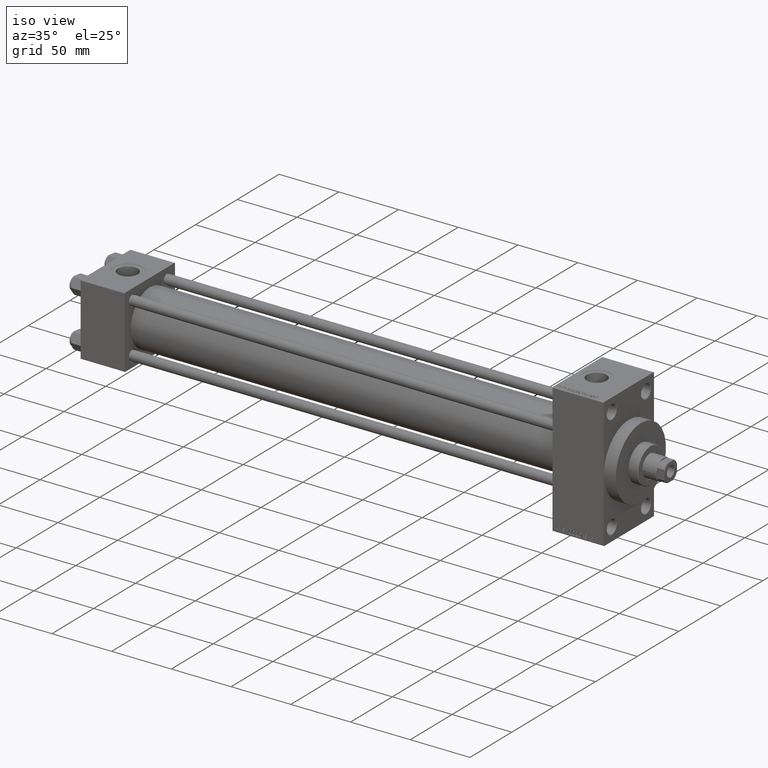
[diagram: clean part render]
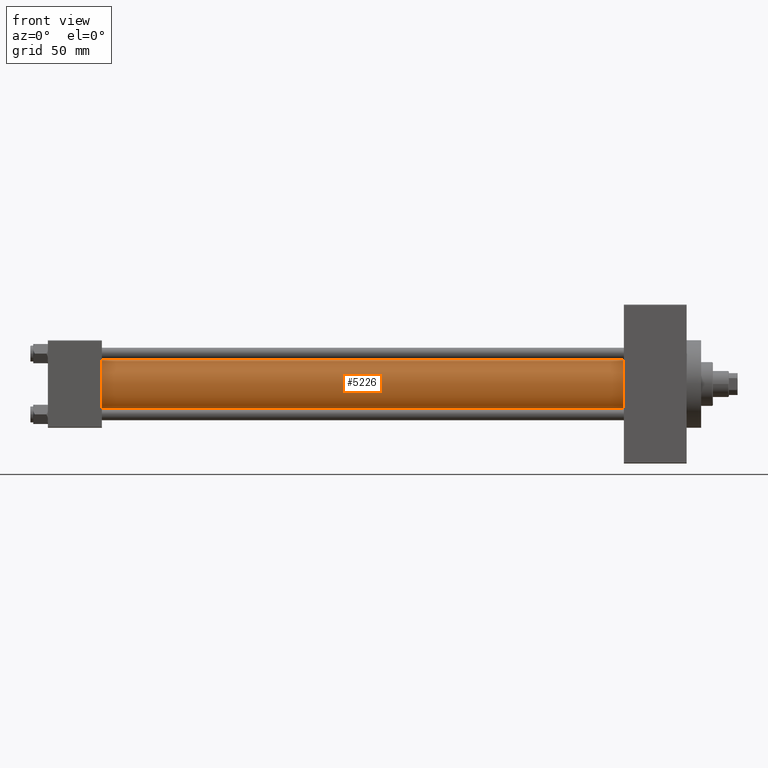
[diagram: tour spotlight — one face highlighted and labeled with its STEP entity id]
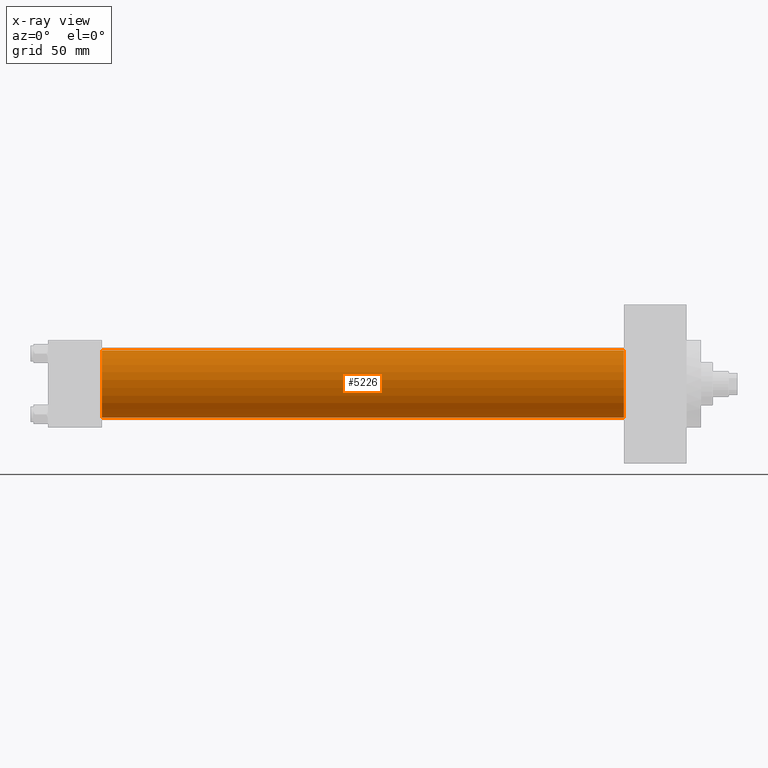
[diagram: x-ray of the same camera — body ghosted, this tour face saturated]
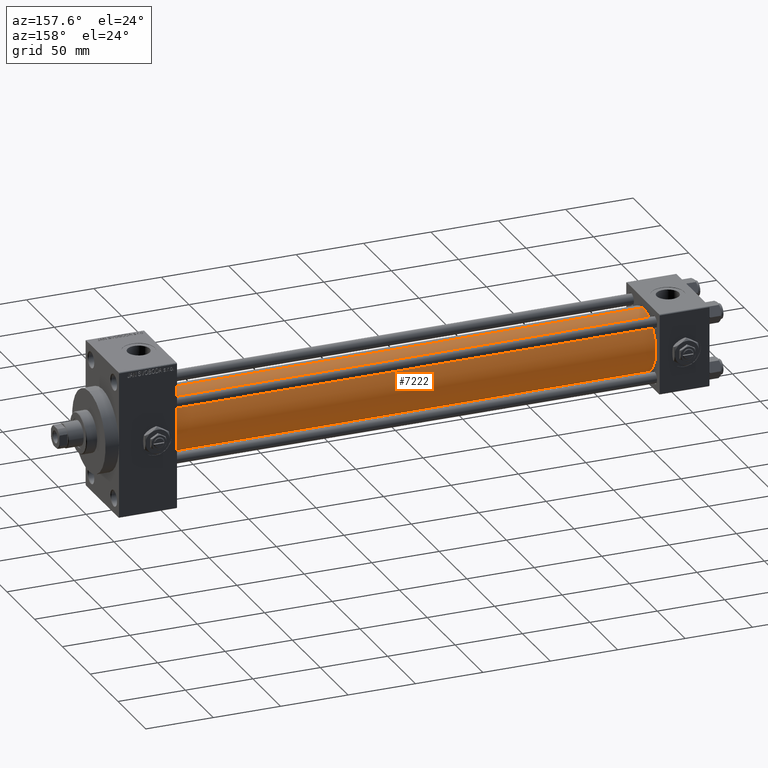
[diagram: tour spotlight — one face highlighted and labeled with its STEP entity id]
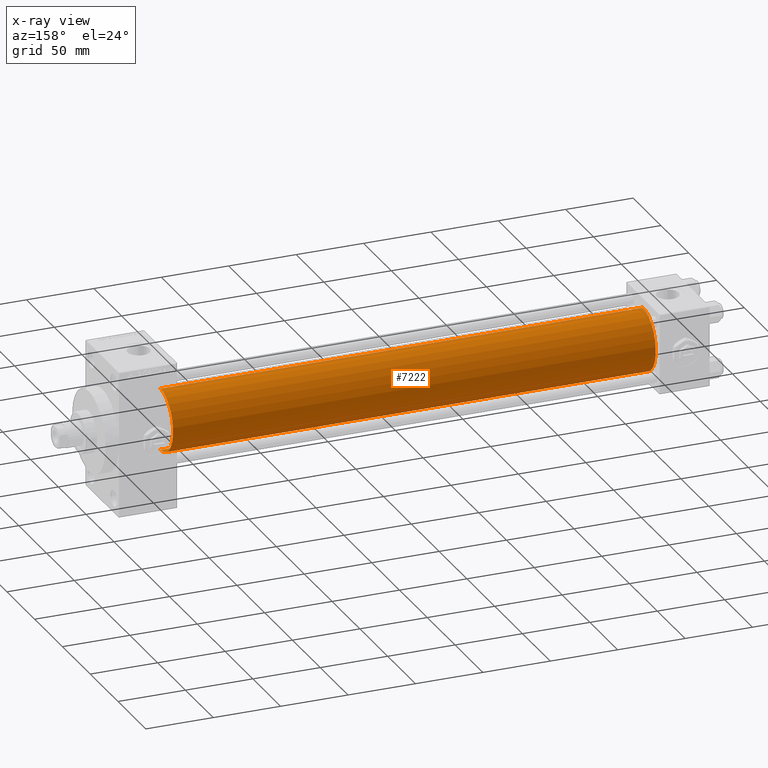
[diagram: x-ray of the same camera — body ghosted, this tour face saturated]
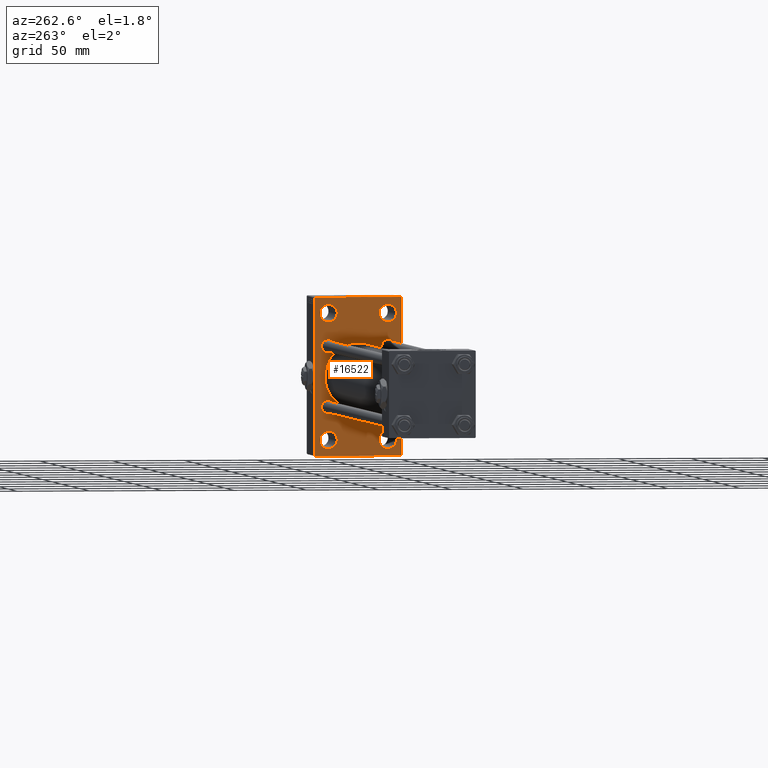
[diagram: tour spotlight — one face highlighted and labeled with its STEP entity id]
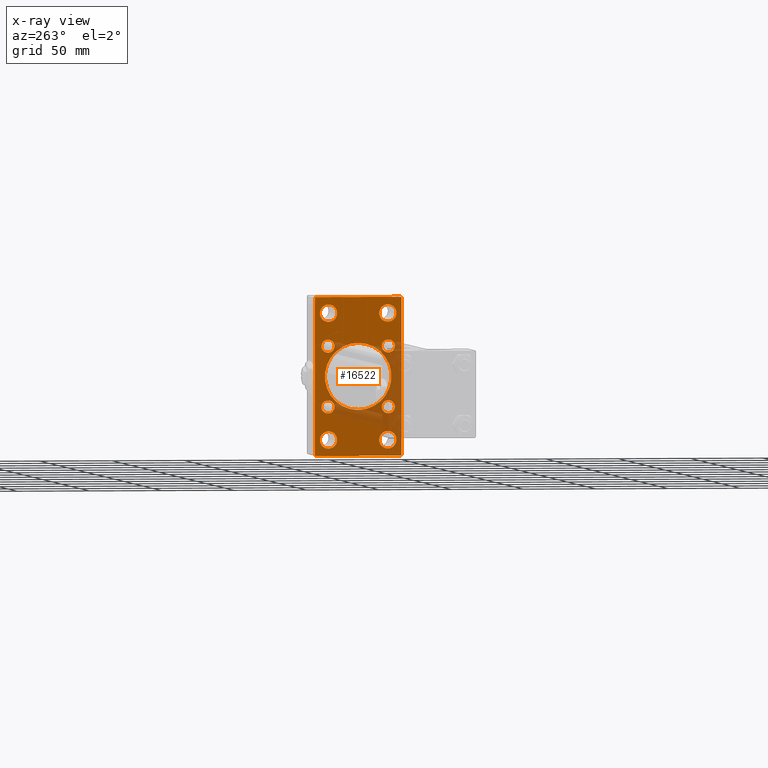
[diagram: x-ray of the same camera — body ghosted, this tour face saturated]
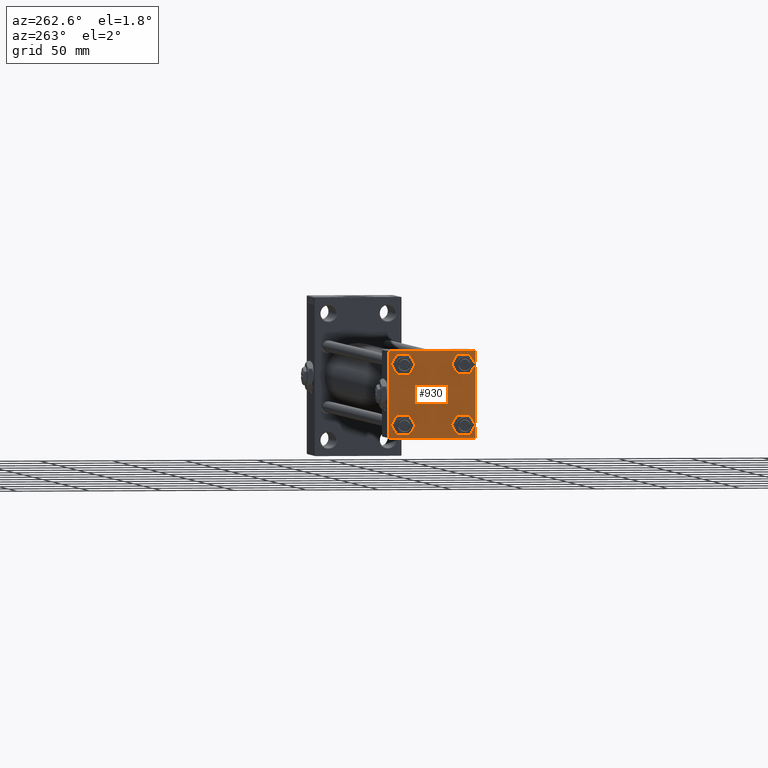
[diagram: tour spotlight — one face highlighted and labeled with its STEP entity id]
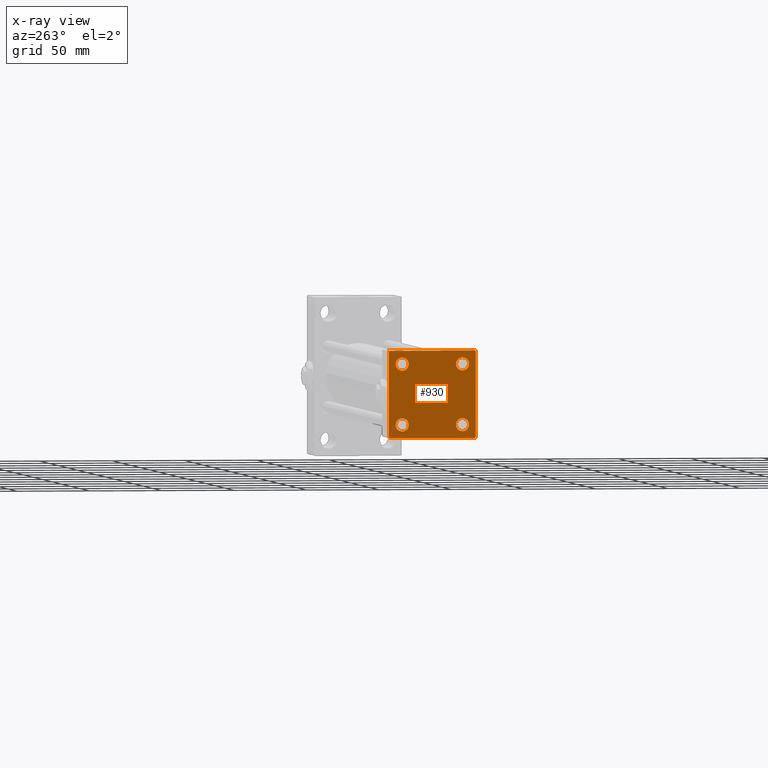
[diagram: x-ray of the same camera — body ghosted, this tour face saturated]
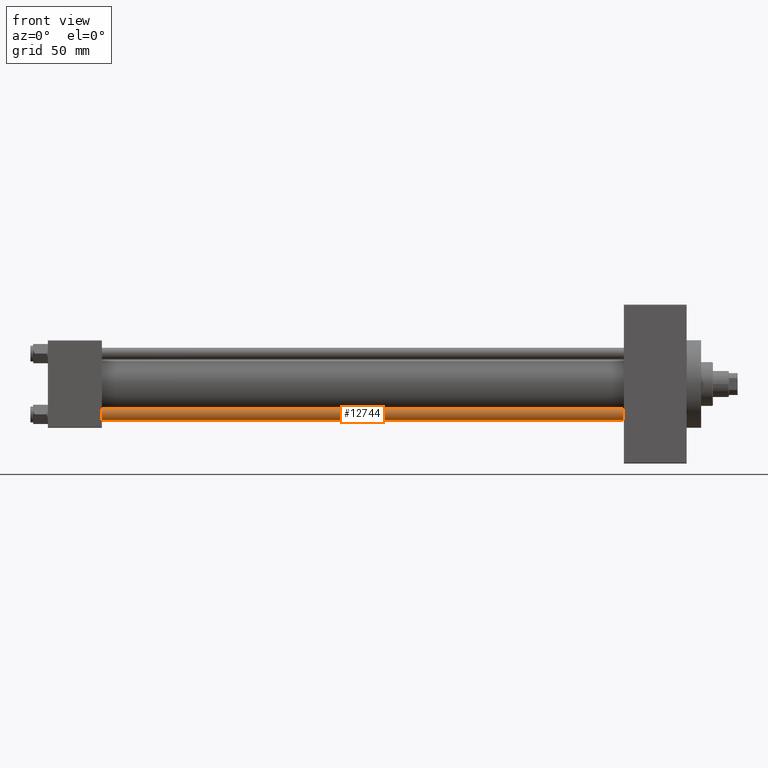
[diagram: tour spotlight — one face highlighted and labeled with its STEP entity id]
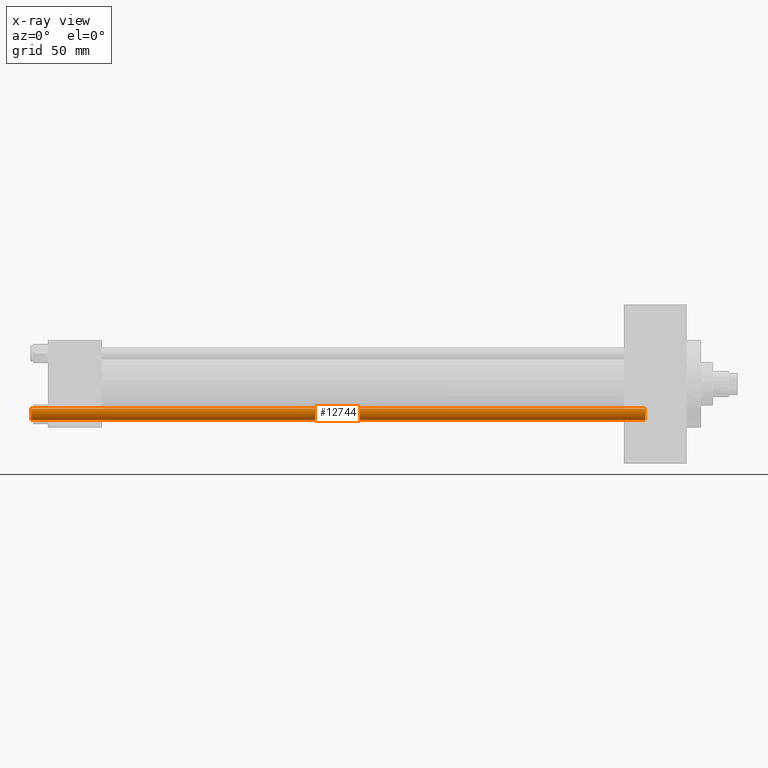
[diagram: x-ray of the same camera — body ghosted, this tour face saturated]
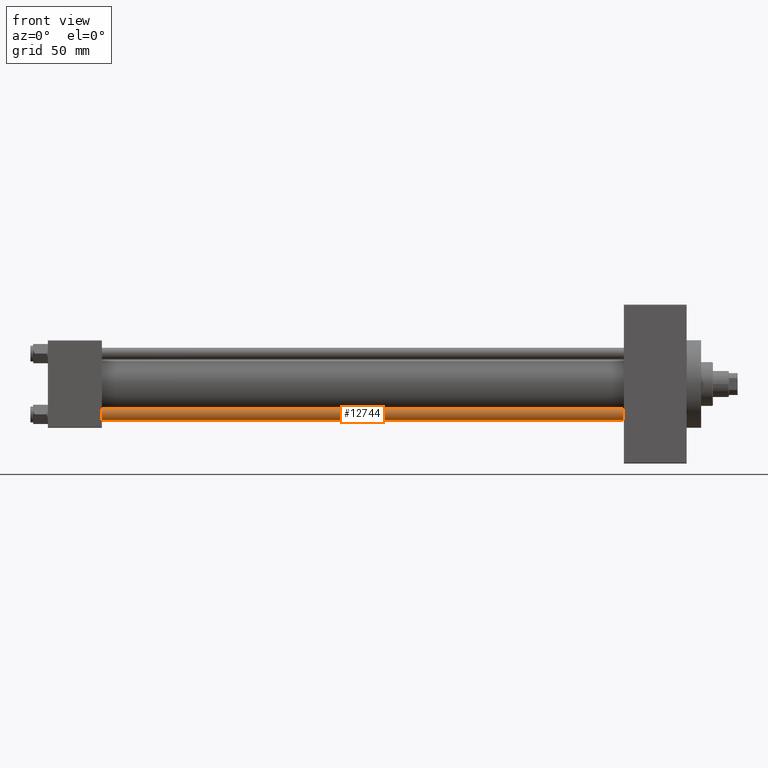
[diagram: tour spotlight — one face highlighted and labeled with its STEP entity id]
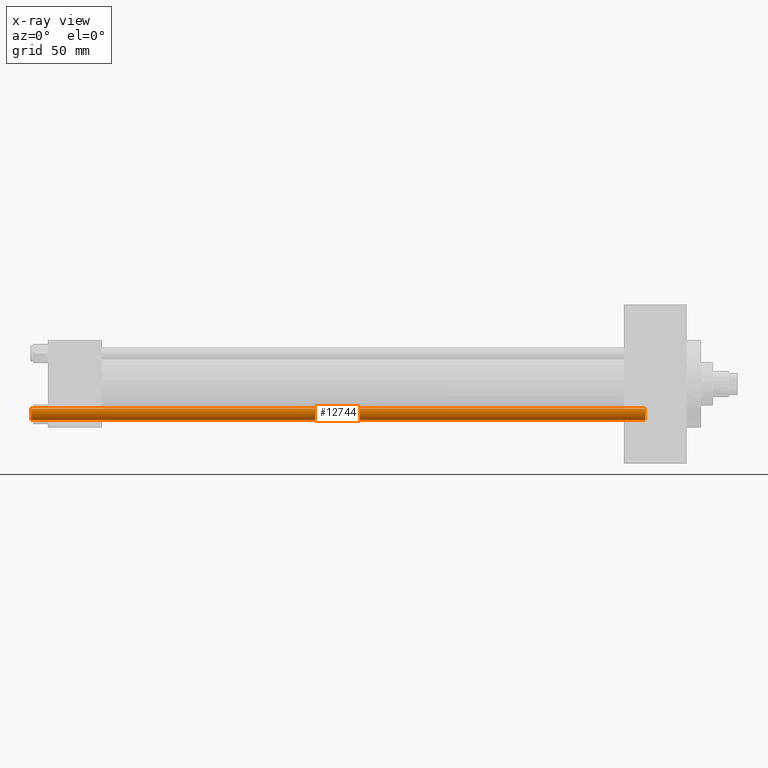
[diagram: x-ray of the same camera — body ghosted, this tour face saturated]
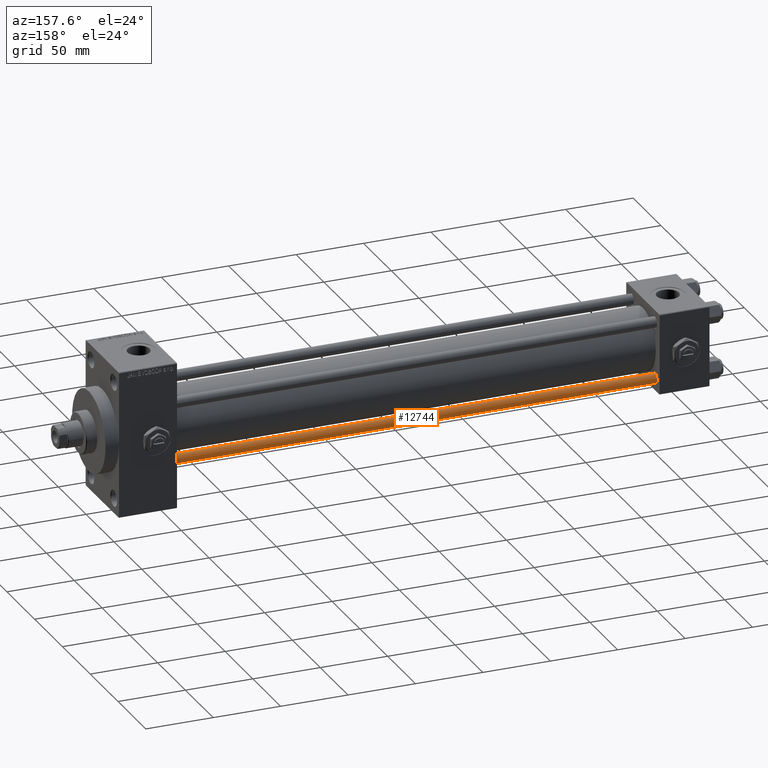
[diagram: tour spotlight — one face highlighted and labeled with its STEP entity id]
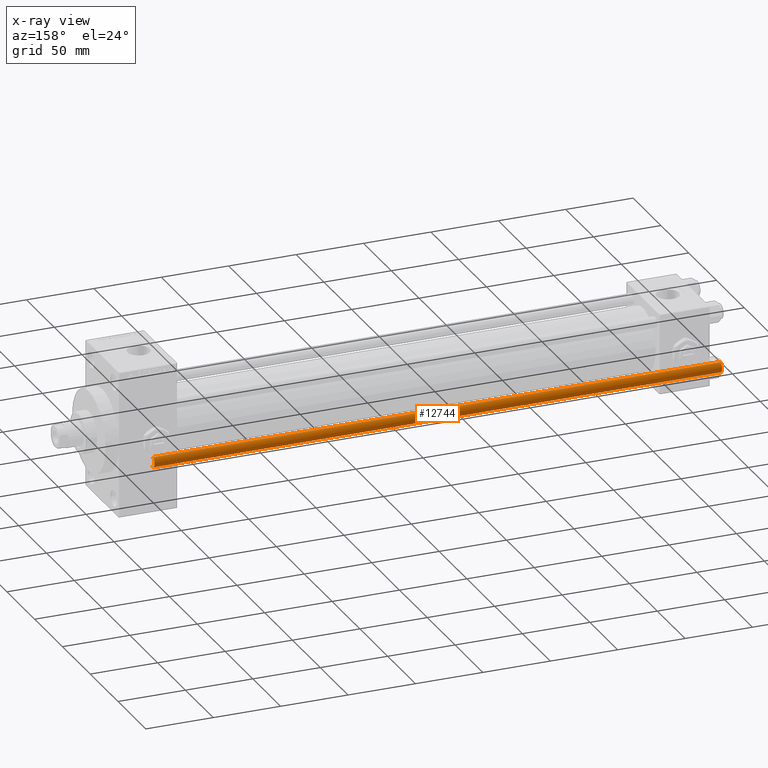
[diagram: x-ray of the same camera — body ghosted, this tour face saturated]
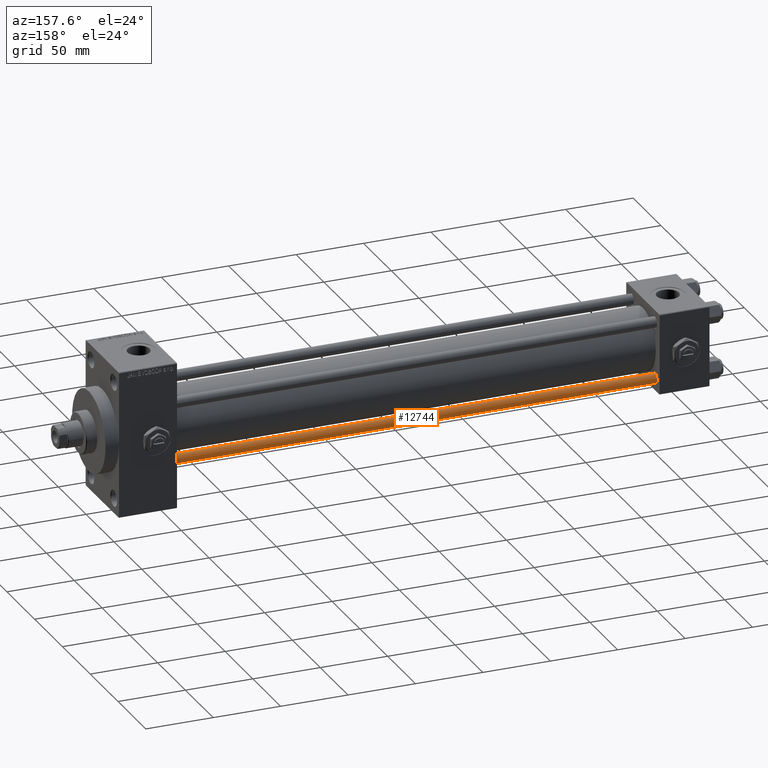
[diagram: tour spotlight — one face highlighted and labeled with its STEP entity id]
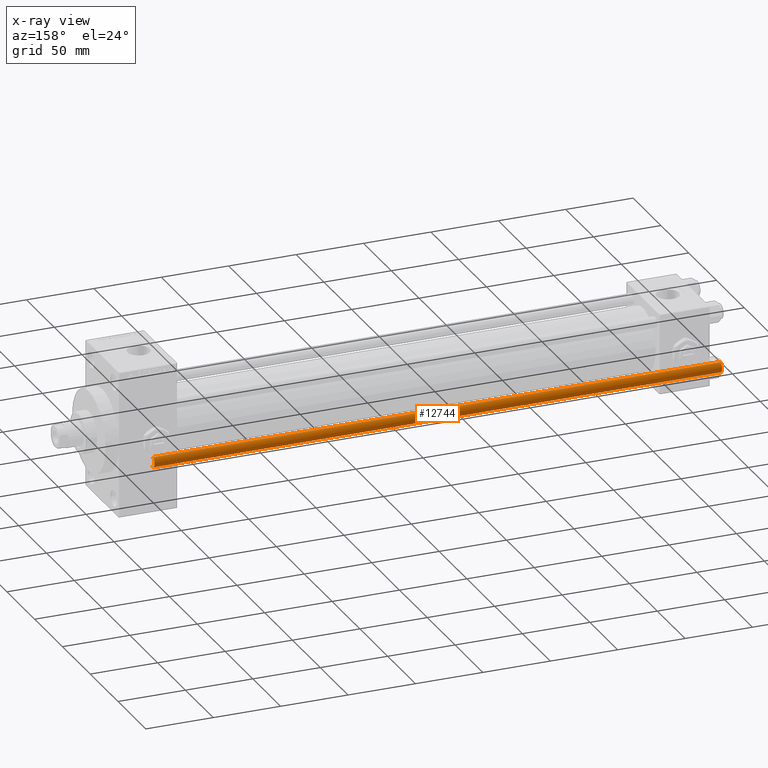
[diagram: x-ray of the same camera — body ghosted, this tour face saturated]
A machine part: a face-by-face anatomy tour. The part has 1205 B-rep faces; the first image is the clean iso view, then the 8 largest visible faces are spotlighted one at a time (largest first), each with its STEP entity span.

Face 1 — front view, entity #5226. An x-ray twin of the same camera follows (body ghosted, this face saturated) — the face is partly hidden behind the body. In plain terms, the highlighted cylindrical surface (edge-blend (fillet) strip) has radius 23 mm, axis along (-1, -0, -0).
Definition (entity closure, byte-faithful):
#322 = CARTESIAN_POINT ( 'NONE',  ( 394.9999999999999432, -2.602085213965210642E-15, 0.000000000000000000 ) ) ;
#543 = VERTEX_POINT ( 'NONE', #41131 ) ;
#3088 = ORIENTED_EDGE ( 'NONE', *, *, #41941, .T. ) ;
#3431 = DIRECTION ( 'NONE',  ( -1.000000000000000000, -0.000000000000000000, -0.000000000000000000 ) ) ;
#3810 = FACE_OUTER_BOUND ( 'NONE', #23473, .T. ) ;
#5226 = ADVANCED_FACE ( 'NONE', ( #3810 ), #22252, .T. ) ;
#5542 = VECTOR ( 'NONE', #3431, 1000.000000000000000 ) ;
#7905 = LINE ( 'NONE', #38329, #5542 ) ;
#8643 = CIRCLE ( 'NONE', #11054, 23.00000000000000000 ) ;
#8799 = ORIENTED_EDGE ( 'NONE', *, *, #48352, .F. ) ;
#8802 = EDGE_CURVE ( 'NONE', #43376, #46354, #22901, .T. ) ;
#11054 = AXIS2_PLACEMENT_3D ( 'NONE', #35944, #36182, #17217 ) ;
#11308 = CARTESIAN_POINT ( 'NONE',  ( 394.9999999999999432, -2.602085213965210642E-15, 23.00000000000000000 ) ) ;
#11814 = ORIENTED_EDGE ( 'NONE', *, *, #47034, .T. ) ;
#15088 = CARTESIAN_POINT ( 'NONE',  ( 394.9999999999999432, 2.146024240737012665E-16, -23.00000000000000000 ) ) ;
#15343 = DIRECTION ( 'NONE',  ( -1.000000000000000000, -0.000000000000000000, -0.000000000000000000 ) ) ;
#16539 = AXIS2_PLACEMENT_3D ( 'NONE', #35334, #42809, #20105 ) ;
#17217 = DIRECTION ( 'NONE',  ( 0.000000000000000000, 0.000000000000000000, 1.000000000000000000 ) ) ;
#20105 = DIRECTION ( 'NONE',  ( 0.000000000000000000, 0.000000000000000000, -1.000000000000000000 ) ) ;
#22252 = CYLINDRICAL_SURFACE ( 'NONE', #25127, 23.00000000000000000 ) ;
#22901 = CIRCLE ( 'NONE', #16539, 23.00000000000000000 ) ;
#23473 = EDGE_LOOP ( 'NONE', ( #8799, #32762, #11814, #3088 ) ) ;
#25127 = AXIS2_PLACEMENT_3D ( 'NONE', #322, #45452, #48937 ) ;
#26197 = CARTESIAN_POINT ( 'NONE',  ( 36.99999999999997868, 2.146024240737012665E-16, -23.00000000000000000 ) ) ;
#32762 = ORIENTED_EDGE ( 'NONE', *, *, #8802, .F. ) ;
#34883 = VERTEX_POINT ( 'NONE', #26197 ) ;
#35334 = CARTESIAN_POINT ( 'NONE',  ( 394.9999999999999432, -2.602085213965210642E-15, 0.000000000000000000 ) ) ;
#35944 = CARTESIAN_POINT ( 'NONE',  ( 36.99999999999997868, -2.602085213965210642E-15, 0.000000000000000000 ) ) ;
#36182 = DIRECTION ( 'NONE',  ( 1.000000000000000000, -0.000000000000000000, 0.000000000000000000 ) ) ;
#38329 = CARTESIAN_POINT ( 'NONE',  ( 394.9999999999999432, -2.602085213965210642E-15, 23.00000000000000000 ) ) ;
#38366 = CARTESIAN_POINT ( 'NONE',  ( 394.9999999999999432, 2.146024240737012665E-16, -23.00000000000000000 ) ) ;
#41131 = CARTESIAN_POINT ( 'NONE',  ( 36.99999999999997868, -2.602085213965210642E-15, 23.00000000000000000 ) ) ;
#41941 = EDGE_CURVE ( 'NONE', #543, #34883, #8643, .T. ) ;
#42206 = VECTOR ( 'NONE', #15343, 1000.000000000000000 ) ;
#42809 = DIRECTION ( 'NONE',  ( 1.000000000000000000, 0.000000000000000000, 0.000000000000000000 ) ) ;
#43376 = VERTEX_POINT ( 'NONE', #11308 ) ;
#45452 = DIRECTION ( 'NONE',  ( -1.000000000000000000, -0.000000000000000000, -0.000000000000000000 ) ) ;
#46354 = VERTEX_POINT ( 'NONE', #38366 ) ;
#47034 = EDGE_CURVE ( 'NONE', #43376, #543, #7905, .T. ) ;
#48352 = EDGE_CURVE ( 'NONE', #46354, #34883, #49244, .T. ) ;
#48937 = DIRECTION ( 'NONE',  ( 0.000000000000000000, 0.000000000000000000, 1.000000000000000000 ) ) ;
#49244 = LINE ( 'NONE', #15088, #42206 ) ;

Face 2 — auxiliary view, entity #7222. An x-ray twin of the same camera follows (body ghosted, this face saturated) — the face is partly hidden behind the body. In plain terms, the highlighted cylindrical surface (edge-blend (fillet) strip) has radius 23 mm, axis along (-1, -0, -0).
Definition (entity closure, byte-faithful):
#543 = VERTEX_POINT ( 'NONE', #41131 ) ;
#2801 = ORIENTED_EDGE ( 'NONE', *, *, #47034, .F. ) ;
#3431 = DIRECTION ( 'NONE',  ( -1.000000000000000000, -0.000000000000000000, -0.000000000000000000 ) ) ;
#4137 = CYLINDRICAL_SURFACE ( 'NONE', #15688, 23.00000000000000000 ) ;
#5542 = VECTOR ( 'NONE', #3431, 1000.000000000000000 ) ;
#6967 = EDGE_CURVE ( 'NONE', #34883, #543, #10870, .T. ) ;
#7222 = ADVANCED_FACE ( 'NONE', ( #42287 ), #4137, .T. ) ;
#7905 = LINE ( 'NONE', #38329, #5542 ) ;
#10870 = CIRCLE ( 'NONE', #11696, 23.00000000000000000 ) ;
#11242 = ORIENTED_EDGE ( 'NONE', *, *, #25432, .F. ) ;
#11308 = CARTESIAN_POINT ( 'NONE',  ( 394.9999999999999432, -2.602085213965210642E-15, 23.00000000000000000 ) ) ;
#11421 = DIRECTION ( 'NONE',  ( 1.000000000000000000, -0.000000000000000000, 0.000000000000000000 ) ) ;
#11696 = AXIS2_PLACEMENT_3D ( 'NONE', #29379, #11421, #44592 ) ;
#11854 = CARTESIAN_POINT ( 'NONE',  ( 394.9999999999999432, -2.602085213965210642E-15, 0.000000000000000000 ) ) ;
#12593 = DIRECTION ( 'NONE',  ( 0.000000000000000000, 0.000000000000000000, 1.000000000000000000 ) ) ;
#13617 = EDGE_LOOP ( 'NONE', ( #11242, #47425, #14256, #2801 ) ) ;
#14256 = ORIENTED_EDGE ( 'NONE', *, *, #6967, .T. ) ;
#15088 = CARTESIAN_POINT ( 'NONE',  ( 394.9999999999999432, 2.146024240737012665E-16, -23.00000000000000000 ) ) ;
#15343 = DIRECTION ( 'NONE',  ( -1.000000000000000000, -0.000000000000000000, -0.000000000000000000 ) ) ;
#15688 = AXIS2_PLACEMENT_3D ( 'NONE', #11854, #16337, #12593 ) ;
#16337 = DIRECTION ( 'NONE',  ( -1.000000000000000000, -0.000000000000000000, -0.000000000000000000 ) ) ;
#23999 = AXIS2_PLACEMENT_3D ( 'NONE', #47822, #27910, #32372 ) ;
#25432 = EDGE_CURVE ( 'NONE', #46354, #43376, #41507, .T. ) ;
#26197 = CARTESIAN_POINT ( 'NONE',  ( 36.99999999999997868, 2.146024240737012665E-16, -23.00000000000000000 ) ) ;
#27910 = DIRECTION ( 'NONE',  ( 1.000000000000000000, 0.000000000000000000, 0.000000000000000000 ) ) ;
#29379 = CARTESIAN_POINT ( 'NONE',  ( 36.99999999999997868, -2.602085213965210642E-15, 0.000000000000000000 ) ) ;
#32372 = DIRECTION ( 'NONE',  ( 0.000000000000000000, 0.000000000000000000, -1.000000000000000000 ) ) ;
#34883 = VERTEX_POINT ( 'NONE', #26197 ) ;
#38329 = CARTESIAN_POINT ( 'NONE',  ( 394.9999999999999432, -2.602085213965210642E-15, 23.00000000000000000 ) ) ;
#38366 = CARTESIAN_POINT ( 'NONE',  ( 394.9999999999999432, 2.146024240737012665E-16, -23.00000000000000000 ) ) ;
#41131 = CARTESIAN_POINT ( 'NONE',  ( 36.99999999999997868, -2.602085213965210642E-15, 23.00000000000000000 ) ) ;
#41507 = CIRCLE ( 'NONE', #23999, 23.00000000000000000 ) ;
#42206 = VECTOR ( 'NONE', #15343, 1000.000000000000000 ) ;
#42287 = FACE_OUTER_BOUND ( 'NONE', #13617, .T. ) ;
#43376 = VERTEX_POINT ( 'NONE', #11308 ) ;
#44592 = DIRECTION ( 'NONE',  ( 0.000000000000000000, 0.000000000000000000, 1.000000000000000000 ) ) ;
#46354 = VERTEX_POINT ( 'NONE', #38366 ) ;
#47034 = EDGE_CURVE ( 'NONE', #43376, #543, #7905, .T. ) ;
#47425 = ORIENTED_EDGE ( 'NONE', *, *, #48352, .T. ) ;
#47822 = CARTESIAN_POINT ( 'NONE',  ( 394.9999999999999432, -2.602085213965210642E-15, 0.000000000000000000 ) ) ;
#48352 = EDGE_CURVE ( 'NONE', #46354, #34883, #49244, .T. ) ;
#49244 = LINE ( 'NONE', #15088, #42206 ) ;

Face 3 — auxiliary view, entity #16522. An x-ray twin of the same camera follows (body ghosted, this face saturated) — the face is partly hidden behind the body. In plain terms, the highlighted planar face has unit normal (-1, 0, 0).
Definition (entity closure, byte-faithful):
#516 = CIRCLE ( 'NONE', #1308, 6.000000000000116351 ) ;
#569 = CIRCLE ( 'NONE', #44320, 4.500000000000007105 ) ;
#1140 = CARTESIAN_POINT ( 'NONE',  ( 394.9999999999999432, -20.50000000000000000, 43.50000000000000000 ) ) ;
#1308 = AXIS2_PLACEMENT_3D ( 'NONE', #33421, #14714, #14471 ) ;
#1336 = DIRECTION ( 'NONE',  ( -0.000000000000000000, 0.7071067811865058284, 0.7071067811865892061 ) ) ;
#2132 = CARTESIAN_POINT ( 'NONE',  ( 394.9999999999999432, -42.00000000000048317, -41.99999999999902656 ) ) ;
#2133 = FACE_BOUND ( 'NONE', #32752, .T. ) ;
#2340 = CARTESIAN_POINT ( 'NONE',  ( 394.9999999999999432, 20.50000000000000000, 43.50000000000000000 ) ) ;
#2383 = FACE_BOUND ( 'NONE', #23580, .T. ) ;
#2442 = EDGE_CURVE ( 'NONE', #29962, #17760, #36919, .T. ) ;
#2497 = DIRECTION ( 'NONE',  ( 1.000000000000000000, -0.000000000000000000, 0.000000000000000000 ) ) ;
#2726 = CARTESIAN_POINT ( 'NONE',  ( 394.9999999999999432, 20.50000000000000000, -49.50000000000011369 ) ) ;
#3133 = VECTOR ( 'NONE', #5824, 1000.000000000000000 ) ;
#3483 = CIRCLE ( 'NONE', #46491, 6.000000000000116351 ) ;
#3814 = CARTESIAN_POINT ( 'NONE',  ( 394.9999999999999432, -20.50000000000000000, 37.49999999999987921 ) ) ;
#3830 = EDGE_LOOP ( 'NONE', ( #28006, #7337 ) ) ;
#4011 = CARTESIAN_POINT ( 'NONE',  ( 394.9999999999999432, -20.84999999999999076, -16.34999999999999787 ) ) ;
#4021 = DIRECTION ( 'NONE',  ( 1.000000000000000000, -0.000000000000000000, 0.000000000000000000 ) ) ;
#5158 = EDGE_CURVE ( 'NONE', #30491, #10449, #5591, .T. ) ;
#5591 = LINE ( 'NONE', #21012, #41880 ) ;
#5633 = VECTOR ( 'NONE', #17827, 1000.000000000000000 ) ;
#5644 = LINE ( 'NONE', #2132, #5633 ) ;
#5747 = ORIENTED_EDGE ( 'NONE', *, *, #5158, .T. ) ;
#5824 = DIRECTION ( 'NONE',  ( -0.000000000000000000, -0.7071067811865081598, -0.7071067811865868746 ) ) ;
#6084 = CARTESIAN_POINT ( 'NONE',  ( 394.9999999999999432, -20.50000000000000000, -49.50000000000011369 ) ) ;
#6191 = DIRECTION ( 'NONE',  ( 0.000000000000000000, 0.000000000000000000, 1.000000000000000000 ) ) ;
#6258 = EDGE_LOOP ( 'NONE', ( #13019, #20275 ) ) ;
#6801 = EDGE_CURVE ( 'NONE', #21534, #35366, #569, .T. ) ;
#7255 = VERTEX_POINT ( 'NONE', #27557 ) ;
#7258 = ORIENTED_EDGE ( 'NONE', *, *, #12786, .T. ) ;
#7266 = ORIENTED_EDGE ( 'NONE', *, *, #36142, .T. ) ;
#7337 = ORIENTED_EDGE ( 'NONE', *, *, #26289, .T. ) ;
#7372 = VERTEX_POINT ( 'NONE', #23484 ) ;
#7398 = EDGE_CURVE ( 'NONE', #34953, #46964, #28411, .T. ) ;
#7481 = EDGE_CURVE ( 'NONE', #25135, #25775, #34803, .T. ) ;
#7593 = CARTESIAN_POINT ( 'NONE',  ( 394.9999999999999432, -29.49999999999994671, -54.50000000000000000 ) ) ;
#7842 = DIRECTION ( 'NONE',  ( -0.000000000000000000, 0.000000000000000000, 1.000000000000000000 ) ) ;
#8001 = ORIENTED_EDGE ( 'NONE', *, *, #8802, .T. ) ;
#8054 = EDGE_LOOP ( 'NONE', ( #15053, #45411 ) ) ;
#8772 = DIRECTION ( 'NONE',  ( 1.000000000000000000, -0.000000000000000000, 0.000000000000000000 ) ) ;
#8802 = EDGE_CURVE ( 'NONE', #43376, #46354, #22901, .T. ) ;
#9363 = DIRECTION ( 'NONE',  ( 1.000000000000000000, -0.000000000000000000, 0.000000000000000000 ) ) ;
#9439 = CARTESIAN_POINT ( 'NONE',  ( 394.9999999999999432, -20.84999999999999076, -20.85000000000000497 ) ) ;
#9551 = DIRECTION ( 'NONE',  ( 0.000000000000000000, 0.000000000000000000, 1.000000000000000000 ) ) ;
#9612 = FACE_BOUND ( 'NONE', #45222, .T. ) ;
#10177 = CARTESIAN_POINT ( 'NONE',  ( 394.9999999999999432, -20.84999999999999076, 20.85000000000000497 ) ) ;
#10192 = VERTEX_POINT ( 'NONE', #31588 ) ;
#10449 = VERTEX_POINT ( 'NONE', #7593 ) ;
#10686 = EDGE_CURVE ( 'NONE', #22955, #30491, #20776, .T. ) ;
#10820 = VERTEX_POINT ( 'NONE', #47464 ) ;
#10989 = DIRECTION ( 'NONE',  ( 0.000000000000000000, 0.000000000000000000, 1.000000000000000000 ) ) ;
#11161 = EDGE_CURVE ( 'NONE', #7255, #22892, #516, .T. ) ;
#11308 = CARTESIAN_POINT ( 'NONE',  ( 394.9999999999999432, -2.602085213965210642E-15, 23.00000000000000000 ) ) ;
#11436 = EDGE_CURVE ( 'NONE', #15259, #28830, #21987, .T. ) ;
#11803 = AXIS2_PLACEMENT_3D ( 'NONE', #24577, #9363, #39789 ) ;
#12076 = VECTOR ( 'NONE', #49060, 1000.000000000000114 ) ;
#12677 = LINE ( 'NONE', #28132, #28121 ) ;
#12786 = EDGE_CURVE ( 'NONE', #25775, #25135, #30839, .T. ) ;
#12800 = AXIS2_PLACEMENT_3D ( 'NONE', #13287, #32014, #9551 ) ;
#13019 = ORIENTED_EDGE ( 'NONE', *, *, #11161, .T. ) ;
#13023 = DIRECTION ( 'NONE',  ( 0.000000000000000000, 0.000000000000000000, -1.000000000000000000 ) ) ;
#13237 = DIRECTION ( 'NONE',  ( 0.000000000000000000, 0.000000000000000000, 1.000000000000000000 ) ) ;
#13287 = CARTESIAN_POINT ( 'NONE',  ( 394.9999999999999432, -20.50000000000000000, -43.50000000000000000 ) ) ;
#13345 = FACE_BOUND ( 'NONE', #8054, .T. ) ;
#13354 = DIRECTION ( 'NONE',  ( 1.000000000000000000, -0.000000000000000000, 0.000000000000000000 ) ) ;
#13405 = CARTESIAN_POINT ( 'NONE',  ( 394.9999999999999432, -20.84999999999999076, -25.35000000000001208 ) ) ;
#13486 = CIRCLE ( 'NONE', #12800, 6.000000000000116351 ) ;
#14038 = DIRECTION ( 'NONE',  ( 1.000000000000000000, -0.000000000000000000, 0.000000000000000000 ) ) ;
#14051 = EDGE_LOOP ( 'NONE', ( #14258, #7258 ) ) ;
#14082 = FACE_BOUND ( 'NONE', #36705, .T. ) ;
#14171 = CIRCLE ( 'NONE', #11803, 6.000000000000116351 ) ;
#14223 = DIRECTION ( 'NONE',  ( 0.000000000000000000, 0.000000000000000000, -1.000000000000000000 ) ) ;
#14258 = ORIENTED_EDGE ( 'NONE', *, *, #7481, .T. ) ;
#14291 = DIRECTION ( 'NONE',  ( 0.000000000000000000, 0.000000000000000000, 1.000000000000000000 ) ) ;
#14471 = DIRECTION ( 'NONE',  ( 0.000000000000000000, 0.000000000000000000, 1.000000000000000000 ) ) ;
#14714 = DIRECTION ( 'NONE',  ( 1.000000000000000000, -0.000000000000000000, 0.000000000000000000 ) ) ;
#15053 = ORIENTED_EDGE ( 'NONE', *, *, #40763, .T. ) ;
#15094 = CIRCLE ( 'NONE', #37373, 4.500000000000007105 ) ;
#15259 = VERTEX_POINT ( 'NONE', #31814 ) ;
#15514 = VECTOR ( 'NONE', #14223, 1000.000000000000000 ) ;
#16522 = ADVANCED_FACE ( 'NONE', ( #36537, #29298, #2383, #13345, #2133, #14082, #9612, #17336, #32546, #17587 ), #34019, .T. ) ;
#16539 = AXIS2_PLACEMENT_3D ( 'NONE', #35334, #42809, #20105 ) ;
#16577 = DIRECTION ( 'NONE',  ( 1.000000000000000000, -0.000000000000000000, 0.000000000000000000 ) ) ;
#16988 = CARTESIAN_POINT ( 'NONE',  ( 394.9999999999999432, 20.84999999999999787, -20.85000000000000142 ) ) ;
#17336 = FACE_BOUND ( 'NONE', #3830, .T. ) ;
#17517 = AXIS2_PLACEMENT_3D ( 'NONE', #42654, #4021, #42166 ) ;
#17587 = FACE_OUTER_BOUND ( 'NONE', #35173, .T. ) ;
#17760 = VERTEX_POINT ( 'NONE', #38469 ) ;
#17827 = DIRECTION ( 'NONE',  ( 0.000000000000000000, -0.7071067811865352493, 0.7071067811865597852 ) ) ;
#17938 = EDGE_CURVE ( 'NONE', #47986, #29354, #15094, .T. ) ;
#17973 = ORIENTED_EDGE ( 'NONE', *, *, #45277, .T. ) ;
#18044 = CARTESIAN_POINT ( 'NONE',  ( 394.9999999999999432, 29.99999999999999645, -53.99999999999999289 ) ) ;
#18149 = CARTESIAN_POINT ( 'NONE',  ( 394.9999999999999432, 42.00000000000001421, 42.00000000000001421 ) ) ;
#18808 = DIRECTION ( 'NONE',  ( 1.000000000000000000, -0.000000000000000000, 0.000000000000000000 ) ) ;
#18842 = AXIS2_PLACEMENT_3D ( 'NONE', #2340, #14038, #14291 ) ;
#19328 = AXIS2_PLACEMENT_3D ( 'NONE', #44764, #13354, #48008 ) ;
#20017 = ORIENTED_EDGE ( 'NONE', *, *, #28353, .T. ) ;
#20105 = DIRECTION ( 'NONE',  ( 0.000000000000000000, 0.000000000000000000, -1.000000000000000000 ) ) ;
#20214 = ORIENTED_EDGE ( 'NONE', *, *, #26400, .T. ) ;
#20225 = DIRECTION ( 'NONE',  ( 0.000000000000000000, 0.000000000000000000, 1.000000000000000000 ) ) ;
#20275 = ORIENTED_EDGE ( 'NONE', *, *, #47202, .T. ) ;
#20776 = LINE ( 'NONE', #32496, #3133 ) ;
#21012 = CARTESIAN_POINT ( 'NONE',  ( 394.9999999999999432, 29.99999999999999645, -54.49999999999999289 ) ) ;
#21158 = AXIS2_PLACEMENT_3D ( 'NONE', #24650, #43601, #39863 ) ;
#21211 = DIRECTION ( 'NONE',  ( 0.000000000000000000, 0.000000000000000000, 1.000000000000000000 ) ) ;
#21231 = CARTESIAN_POINT ( 'NONE',  ( 394.9999999999999432, 20.84999999999999787, -16.34999999999999432 ) ) ;
#21534 = VERTEX_POINT ( 'NONE', #41208 ) ;
#21538 = ORIENTED_EDGE ( 'NONE', *, *, #39128, .T. ) ;
#21796 = CIRCLE ( 'NONE', #22626, 4.500000000000007105 ) ;
#21987 = CIRCLE ( 'NONE', #21158, 6.000000000000116351 ) ;
#22033 = ORIENTED_EDGE ( 'NONE', *, *, #29828, .F. ) ;
#22417 = AXIS2_PLACEMENT_3D ( 'NONE', #9439, #27920, #6191 ) ;
#22522 = AXIS2_PLACEMENT_3D ( 'NONE', #38948, #38700, #20225 ) ;
#22626 = AXIS2_PLACEMENT_3D ( 'NONE', #49229, #18808, #45502 ) ;
#22797 = CARTESIAN_POINT ( 'NONE',  ( 394.9999999999999432, 0.000000000000000000, 0.000000000000000000 ) ) ;
#22892 = VERTEX_POINT ( 'NONE', #6084 ) ;
#22901 = CIRCLE ( 'NONE', #16539, 23.00000000000000000 ) ;
#22955 = VERTEX_POINT ( 'NONE', #18044 ) ;
#23484 = CARTESIAN_POINT ( 'NONE',  ( 394.9999999999999432, 29.50000000000004974, 54.49999999999999289 ) ) ;
#23580 = EDGE_LOOP ( 'NONE', ( #40248, #38447 ) ) ;
#23612 = VERTEX_POINT ( 'NONE', #49339 ) ;
#23999 = AXIS2_PLACEMENT_3D ( 'NONE', #47822, #27910, #32372 ) ;
#24255 = LINE ( 'NONE', #42969, #28054 ) ;
#24553 = EDGE_CURVE ( 'NONE', #10449, #17760, #5644, .T. ) ;
#24577 = CARTESIAN_POINT ( 'NONE',  ( 394.9999999999999432, 20.50000000000000000, 43.50000000000000000 ) ) ;
#24650 = CARTESIAN_POINT ( 'NONE',  ( 394.9999999999999432, 20.50000000000000000, -43.50000000000000000 ) ) ;
#25119 = CARTESIAN_POINT ( 'NONE',  ( 394.9999999999999432, 20.84999999999999787, -25.35000000000000853 ) ) ;
#25135 = VERTEX_POINT ( 'NONE', #39918 ) ;
#25202 = AXIS2_PLACEMENT_3D ( 'NONE', #26985, #8772, #38208 ) ;
#25219 = CARTESIAN_POINT ( 'NONE',  ( 394.9999999999999432, 29.50000000000004974, -54.49999999999999289 ) ) ;
#25222 = LINE ( 'NONE', #40444, #37202 ) ;
#25432 = EDGE_CURVE ( 'NONE', #46354, #43376, #41507, .T. ) ;
#25594 = VERTEX_POINT ( 'NONE', #39016 ) ;
#25775 = VERTEX_POINT ( 'NONE', #3814 ) ;
#26289 = EDGE_CURVE ( 'NONE', #46964, #34953, #48690, .T. ) ;
#26400 = EDGE_CURVE ( 'NONE', #7372, #10192, #33850, .T. ) ;
#26957 = AXIS2_PLACEMENT_3D ( 'NONE', #22797, #44757, #7842 ) ;
#26985 = CARTESIAN_POINT ( 'NONE',  ( 394.9999999999999432, -20.84999999999999076, -20.85000000000000497 ) ) ;
#27019 = ORIENTED_EDGE ( 'NONE', *, *, #24553, .T. ) ;
#27557 = CARTESIAN_POINT ( 'NONE',  ( 394.9999999999999432, -20.50000000000000000, -37.49999999999987921 ) ) ;
#27874 = CARTESIAN_POINT ( 'NONE',  ( 394.9999999999999432, -20.84999999999999076, 16.34999999999999787 ) ) ;
#27910 = DIRECTION ( 'NONE',  ( 1.000000000000000000, 0.000000000000000000, 0.000000000000000000 ) ) ;
#27920 = DIRECTION ( 'NONE',  ( 1.000000000000000000, -0.000000000000000000, 0.000000000000000000 ) ) ;
#28006 = ORIENTED_EDGE ( 'NONE', *, *, #7398, .T. ) ;
#28054 = VECTOR ( 'NONE', #13023, 1000.000000000000000 ) ;
#28116 = ORIENTED_EDGE ( 'NONE', *, *, #10686, .T. ) ;
#28121 = VECTOR ( 'NONE', #47329, 1000.000000000000000 ) ;
#28132 = CARTESIAN_POINT ( 'NONE',  ( 394.9999999999999432, 29.99999999999999645, 54.49999999999999289 ) ) ;
#28353 = EDGE_CURVE ( 'NONE', #10192, #22955, #24255, .T. ) ;
#28411 = CIRCLE ( 'NONE', #25202, 4.500000000000007105 ) ;
#28427 = CARTESIAN_POINT ( 'NONE',  ( 394.9999999999999432, -20.50000000000000000, 43.50000000000000000 ) ) ;
#28830 = VERTEX_POINT ( 'NONE', #2726 ) ;
#28882 = CIRCLE ( 'NONE', #22522, 4.500000000000007105 ) ;
#29298 = FACE_BOUND ( 'NONE', #6258, .T. ) ;
#29354 = VERTEX_POINT ( 'NONE', #21231 ) ;
#29415 = DIRECTION ( 'NONE',  ( 0.000000000000000000, 0.000000000000000000, 1.000000000000000000 ) ) ;
#29828 = EDGE_CURVE ( 'NONE', #7372, #10820, #12677, .T. ) ;
#29962 = VERTEX_POINT ( 'NONE', #37073 ) ;
#30491 = VERTEX_POINT ( 'NONE', #25219 ) ;
#30763 = ORIENTED_EDGE ( 'NONE', *, *, #6801, .T. ) ;
#30839 = CIRCLE ( 'NONE', #41188, 6.000000000000116351 ) ;
#31065 = CIRCLE ( 'NONE', #17517, 4.500000000000007105 ) ;
#31588 = CARTESIAN_POINT ( 'NONE',  ( 394.9999999999999432, 29.99999999999999645, 54.00000000000004974 ) ) ;
#31601 = AXIS2_PLACEMENT_3D ( 'NONE', #28427, #2497, #29415 ) ;
#31814 = CARTESIAN_POINT ( 'NONE',  ( 394.9999999999999432, 20.50000000000000000, -37.49999999999987921 ) ) ;
#32014 = DIRECTION ( 'NONE',  ( 1.000000000000000000, -0.000000000000000000, 0.000000000000000000 ) ) ;
#32204 = DIRECTION ( 'NONE',  ( 1.000000000000000000, -0.000000000000000000, 0.000000000000000000 ) ) ;
#32372 = DIRECTION ( 'NONE',  ( 0.000000000000000000, 0.000000000000000000, -1.000000000000000000 ) ) ;
#32496 = CARTESIAN_POINT ( 'NONE',  ( 394.9999999999999432, 42.00000000000166267, -41.99999999999699440 ) ) ;
#32546 = FACE_BOUND ( 'NONE', #45969, .T. ) ;
#32752 = EDGE_LOOP ( 'NONE', ( #30763, #7266 ) ) ;
#32919 = EDGE_CURVE ( 'NONE', #29354, #47986, #28882, .T. ) ;
#33391 = EDGE_CURVE ( 'NONE', #23612, #37008, #36827, .T. ) ;
#33421 = CARTESIAN_POINT ( 'NONE',  ( 394.9999999999999432, -20.50000000000000000, -43.50000000000000000 ) ) ;
#33850 = LINE ( 'NONE', #18149, #12076 ) ;
#33916 = CARTESIAN_POINT ( 'NONE',  ( 394.9999999999999432, 20.50000000000000000, -43.50000000000000000 ) ) ;
#34019 = PLANE ( 'NONE',  #26957 ) ;
#34803 = CIRCLE ( 'NONE', #31601, 6.000000000000116351 ) ;
#34921 = EDGE_CURVE ( 'NONE', #28830, #15259, #3483, .T. ) ;
#34953 = VERTEX_POINT ( 'NONE', #4011 ) ;
#35173 = EDGE_LOOP ( 'NONE', ( #5747, #27019, #46146, #21538, #22033, #20214, #20017, #28116 ) ) ;
#35334 = CARTESIAN_POINT ( 'NONE',  ( 394.9999999999999432, -2.602085213965210642E-15, 0.000000000000000000 ) ) ;
#35366 = VERTEX_POINT ( 'NONE', #27874 ) ;
#36142 = EDGE_CURVE ( 'NONE', #35366, #21534, #21796, .T. ) ;
#36537 = FACE_BOUND ( 'NONE', #14051, .T. ) ;
#36619 = DIRECTION ( 'NONE',  ( 0.000000000000000000, 0.000000000000000000, 1.000000000000000000 ) ) ;
#36705 = EDGE_LOOP ( 'NONE', ( #17973, #39910 ) ) ;
#36827 = CIRCLE ( 'NONE', #19328, 4.500000000000007105 ) ;
#36919 = LINE ( 'NONE', #48136, #15514 ) ;
#37008 = VERTEX_POINT ( 'NONE', #44825 ) ;
#37073 = CARTESIAN_POINT ( 'NONE',  ( 394.9999999999999432, -30.00000000000000000, 54.00000000000000000 ) ) ;
#37202 = VECTOR ( 'NONE', #1336, 1000.000000000000000 ) ;
#37373 = AXIS2_PLACEMENT_3D ( 'NONE', #16988, #32204, #13237 ) ;
#38208 = DIRECTION ( 'NONE',  ( 0.000000000000000000, 0.000000000000000000, 1.000000000000000000 ) ) ;
#38366 = CARTESIAN_POINT ( 'NONE',  ( 394.9999999999999432, 2.146024240737012665E-16, -23.00000000000000000 ) ) ;
#38447 = ORIENTED_EDGE ( 'NONE', *, *, #34921, .T. ) ;
#38449 = EDGE_CURVE ( 'NONE', #25594, #43166, #40334, .T. ) ;
#38469 = CARTESIAN_POINT ( 'NONE',  ( 394.9999999999999432, -30.00000000000000000, -53.99999999999992895 ) ) ;
#38474 = ORIENTED_EDGE ( 'NONE', *, *, #32919, .T. ) ;
#38700 = DIRECTION ( 'NONE',  ( 1.000000000000000000, -0.000000000000000000, 0.000000000000000000 ) ) ;
#38948 = CARTESIAN_POINT ( 'NONE',  ( 394.9999999999999432, 20.84999999999999787, -20.85000000000000142 ) ) ;
#39016 = CARTESIAN_POINT ( 'NONE',  ( 394.9999999999999432, 20.50000000000000000, 37.49999999999987921 ) ) ;
#39128 = EDGE_CURVE ( 'NONE', #29962, #10820, #25222, .T. ) ;
#39789 = DIRECTION ( 'NONE',  ( 0.000000000000000000, 0.000000000000000000, 1.000000000000000000 ) ) ;
#39863 = DIRECTION ( 'NONE',  ( 0.000000000000000000, 0.000000000000000000, 1.000000000000000000 ) ) ;
#39910 = ORIENTED_EDGE ( 'NONE', *, *, #33391, .T. ) ;
#39918 = CARTESIAN_POINT ( 'NONE',  ( 394.9999999999999432, -20.50000000000000000, 49.50000000000011369 ) ) ;
#40248 = ORIENTED_EDGE ( 'NONE', *, *, #11436, .T. ) ;
#40334 = CIRCLE ( 'NONE', #18842, 6.000000000000116351 ) ;
#40444 = CARTESIAN_POINT ( 'NONE',  ( 394.9999999999999432, -42.00000000000176215, 41.99999999999681677 ) ) ;
#40763 = EDGE_CURVE ( 'NONE', #43166, #25594, #14171, .T. ) ;
#41188 = AXIS2_PLACEMENT_3D ( 'NONE', #1140, #16577, #21211 ) ;
#41208 = CARTESIAN_POINT ( 'NONE',  ( 394.9999999999999432, -20.84999999999999076, 25.35000000000001208 ) ) ;
#41507 = CIRCLE ( 'NONE', #23999, 23.00000000000000000 ) ;
#41880 = VECTOR ( 'NONE', #48438, 1000.000000000000000 ) ;
#41990 = ORIENTED_EDGE ( 'NONE', *, *, #25432, .T. ) ;
#42166 = DIRECTION ( 'NONE',  ( 0.000000000000000000, 0.000000000000000000, 1.000000000000000000 ) ) ;
#42405 = ORIENTED_EDGE ( 'NONE', *, *, #17938, .T. ) ;
#42654 = CARTESIAN_POINT ( 'NONE',  ( 394.9999999999999432, 20.84999999999999787, 20.85000000000000142 ) ) ;
#42809 = DIRECTION ( 'NONE',  ( 1.000000000000000000, 0.000000000000000000, 0.000000000000000000 ) ) ;
#42969 = CARTESIAN_POINT ( 'NONE',  ( 394.9999999999999432, 29.99999999999999645, 54.49999999999999289 ) ) ;
#43166 = VERTEX_POINT ( 'NONE', #45332 ) ;
#43376 = VERTEX_POINT ( 'NONE', #11308 ) ;
#43601 = DIRECTION ( 'NONE',  ( 1.000000000000000000, -0.000000000000000000, 0.000000000000000000 ) ) ;
#44320 = AXIS2_PLACEMENT_3D ( 'NONE', #10177, #48322, #36619 ) ;
#44757 = DIRECTION ( 'NONE',  ( -1.000000000000000000, 0.000000000000000000, -0.000000000000000000 ) ) ;
#44764 = CARTESIAN_POINT ( 'NONE',  ( 394.9999999999999432, 20.84999999999999787, 20.85000000000000142 ) ) ;
#44825 = CARTESIAN_POINT ( 'NONE',  ( 394.9999999999999432, 20.84999999999999787, 25.35000000000000853 ) ) ;
#45222 = EDGE_LOOP ( 'NONE', ( #38474, #42405 ) ) ;
#45277 = EDGE_CURVE ( 'NONE', #37008, #23612, #31065, .T. ) ;
#45332 = CARTESIAN_POINT ( 'NONE',  ( 394.9999999999999432, 20.50000000000000000, 49.50000000000011369 ) ) ;
#45411 = ORIENTED_EDGE ( 'NONE', *, *, #38449, .T. ) ;
#45502 = DIRECTION ( 'NONE',  ( 0.000000000000000000, 0.000000000000000000, 1.000000000000000000 ) ) ;
#45969 = EDGE_LOOP ( 'NONE', ( #8001, #41990 ) ) ;
#46146 = ORIENTED_EDGE ( 'NONE', *, *, #2442, .F. ) ;
#46354 = VERTEX_POINT ( 'NONE', #38366 ) ;
#46491 = AXIS2_PLACEMENT_3D ( 'NONE', #33916, #49131, #10989 ) ;
#46964 = VERTEX_POINT ( 'NONE', #13405 ) ;
#47202 = EDGE_CURVE ( 'NONE', #22892, #7255, #13486, .T. ) ;
#47329 = DIRECTION ( 'NONE',  ( 0.000000000000000000, -1.000000000000000000, 1.156482317317871478E-16 ) ) ;
#47464 = CARTESIAN_POINT ( 'NONE',  ( 394.9999999999999432, -29.50000000000005684, 54.50000000000000000 ) ) ;
#47822 = CARTESIAN_POINT ( 'NONE',  ( 394.9999999999999432, -2.602085213965210642E-15, 0.000000000000000000 ) ) ;
#47986 = VERTEX_POINT ( 'NONE', #25119 ) ;
#48008 = DIRECTION ( 'NONE',  ( 0.000000000000000000, 0.000000000000000000, 1.000000000000000000 ) ) ;
#48136 = CARTESIAN_POINT ( 'NONE',  ( 394.9999999999999432, -30.00000000000000000, 54.50000000000000000 ) ) ;
#48322 = DIRECTION ( 'NONE',  ( 1.000000000000000000, -0.000000000000000000, 0.000000000000000000 ) ) ;
#48438 = DIRECTION ( 'NONE',  ( 0.000000000000000000, -1.000000000000000000, -1.156482317317871478E-16 ) ) ;
#48690 = CIRCLE ( 'NONE', #22417, 4.500000000000007105 ) ;
#49060 = DIRECTION ( 'NONE',  ( 0.000000000000000000, 0.7071067811865474617, -0.7071067811865474617 ) ) ;
#49131 = DIRECTION ( 'NONE',  ( 1.000000000000000000, -0.000000000000000000, 0.000000000000000000 ) ) ;
#49229 = CARTESIAN_POINT ( 'NONE',  ( 394.9999999999999432, -20.84999999999999076, 20.85000000000000497 ) ) ;
#49339 = CARTESIAN_POINT ( 'NONE',  ( 394.9999999999999432, 20.84999999999999787, 16.34999999999999432 ) ) ;

Face 4 — auxiliary view, entity #930. An x-ray twin of the same camera follows (body ghosted, this face saturated) — the face is partly hidden behind the body. In plain terms, the highlighted planar face has unit normal (-1, 0, 0).
Definition (entity closure, byte-faithful):
#68 = CARTESIAN_POINT ( 'NONE',  ( 0.000000000000000000, -20.84999999999999076, 20.85000000000000497 ) ) ;
#187 = EDGE_CURVE ( 'NONE', #46402, #12314, #18710, .T. ) ;
#572 = EDGE_CURVE ( 'NONE', #30523, #4892, #31395, .T. ) ;
#852 = CARTESIAN_POINT ( 'NONE',  ( 0.000000000000000000, 29.99999999999999289, 30.00000000000000000 ) ) ;
#930 = ADVANCED_FACE ( 'NONE', ( #44818, #22856, #3669, #11149, #18132 ), #6908, .T. ) ;
#1037 = ORIENTED_EDGE ( 'NONE', *, *, #15791, .T. ) ;
#3177 = DIRECTION ( 'NONE',  ( -0.000000000000000000, 0.000000000000000000, 1.000000000000000000 ) ) ;
#3190 = CARTESIAN_POINT ( 'NONE',  ( 0.000000000000000000, -20.84999999999999076, -20.85000000000000497 ) ) ;
#3238 = DIRECTION ( 'NONE',  ( 1.000000000000000000, -0.000000000000000000, 0.000000000000000000 ) ) ;
#3274 = EDGE_CURVE ( 'NONE', #12314, #46402, #5955, .T. ) ;
#3669 = FACE_BOUND ( 'NONE', #17501, .T. ) ;
#3676 = ORIENTED_EDGE ( 'NONE', *, *, #572, .T. ) ;
#4126 = EDGE_CURVE ( 'NONE', #23975, #10762, #40231, .T. ) ;
#4892 = VERTEX_POINT ( 'NONE', #10601 ) ;
#5136 = AXIS2_PLACEMENT_3D ( 'NONE', #68, #19497, #19739 ) ;
#5914 = EDGE_CURVE ( 'NONE', #4892, #30523, #10038, .T. ) ;
#5955 = CIRCLE ( 'NONE', #9136, 4.500000000000017764 ) ;
#6364 = CARTESIAN_POINT ( 'NONE',  ( 0.000000000000000000, 29.74999999999957723, -29.75000000000040501 ) ) ;
#6908 = PLANE ( 'NONE',  #41750 ) ;
#6965 = ORIENTED_EDGE ( 'NONE', *, *, #3274, .T. ) ;
#7276 = VERTEX_POINT ( 'NONE', #8612 ) ;
#7929 = ORIENTED_EDGE ( 'NONE', *, *, #35213, .T. ) ;
#8076 = VERTEX_POINT ( 'NONE', #26546 ) ;
#8612 = CARTESIAN_POINT ( 'NONE',  ( 0.000000000000000000, -20.84999999999999076, 25.35000000000002274 ) ) ;
#8675 = ORIENTED_EDGE ( 'NONE', *, *, #42697, .T. ) ;
#8707 = ORIENTED_EDGE ( 'NONE', *, *, #5914, .T. ) ;
#9136 = AXIS2_PLACEMENT_3D ( 'NONE', #36441, #40173, #47906 ) ;
#9670 = ORIENTED_EDGE ( 'NONE', *, *, #14460, .F. ) ;
#10004 = ORIENTED_EDGE ( 'NONE', *, *, #14177, .T. ) ;
#10038 = CIRCLE ( 'NONE', #40303, 4.500000000000017764 ) ;
#10352 = EDGE_CURVE ( 'NONE', #12663, #38826, #13350, .T. ) ;
#10367 = CARTESIAN_POINT ( 'NONE',  ( 0.000000000000000000, 29.99999999999999289, 29.50000000000000000 ) ) ;
#10426 = DIRECTION ( 'NONE',  ( 0.000000000000000000, 0.000000000000000000, 1.000000000000000000 ) ) ;
#10601 = CARTESIAN_POINT ( 'NONE',  ( 0.000000000000000000, -20.84999999999999076, -25.35000000000002274 ) ) ;
#10714 = CARTESIAN_POINT ( 'NONE',  ( 0.000000000000000000, -20.84999999999999076, -20.85000000000000497 ) ) ;
#10716 = CARTESIAN_POINT ( 'NONE',  ( -0.000000000000000000, -29.74999999999999645, 29.74999999999999645 ) ) ;
#10762 = VERTEX_POINT ( 'NONE', #32254 ) ;
#11040 = LINE ( 'NONE', #45453, #48927 ) ;
#11149 = FACE_BOUND ( 'NONE', #26974, .T. ) ;
#11428 = CARTESIAN_POINT ( 'NONE',  ( 0.000000000000000000, 29.74999999999999645, 29.74999999999999645 ) ) ;
#11591 = AXIS2_PLACEMENT_3D ( 'NONE', #10714, #3238, #29670 ) ;
#12154 = DIRECTION ( 'NONE',  ( 0.000000000000000000, 0.000000000000000000, 1.000000000000000000 ) ) ;
#12286 = DIRECTION ( 'NONE',  ( 1.000000000000000000, -0.000000000000000000, 0.000000000000000000 ) ) ;
#12314 = VERTEX_POINT ( 'NONE', #17416 ) ;
#12663 = VERTEX_POINT ( 'NONE', #10367 ) ;
#13350 = LINE ( 'NONE', #48006, #38165 ) ;
#13823 = VERTEX_POINT ( 'NONE', #15922 ) ;
#13924 = ORIENTED_EDGE ( 'NONE', *, *, #10352, .T. ) ;
#14177 = EDGE_CURVE ( 'NONE', #17457, #13823, #36268, .T. ) ;
#14243 = AXIS2_PLACEMENT_3D ( 'NONE', #31242, #12286, #16275 ) ;
#14460 = EDGE_CURVE ( 'NONE', #45102, #33262, #37990, .T. ) ;
#14652 = DIRECTION ( 'NONE',  ( 1.000000000000000000, -0.000000000000000000, 0.000000000000000000 ) ) ;
#15249 = CARTESIAN_POINT ( 'NONE',  ( 0.000000000000000000, -20.84999999999999076, -16.34999999999998721 ) ) ;
#15791 = EDGE_CURVE ( 'NONE', #13823, #40698, #31213, .T. ) ;
#15922 = CARTESIAN_POINT ( 'NONE',  ( 0.000000000000000000, -29.50000000000000000, -30.00000000000000711 ) ) ;
#16229 = ORIENTED_EDGE ( 'NONE', *, *, #37231, .F. ) ;
#16239 = VECTOR ( 'NONE', #29875, 1000.000000000000114 ) ;
#16275 = DIRECTION ( 'NONE',  ( 0.000000000000000000, 0.000000000000000000, 1.000000000000000000 ) ) ;
#16496 = EDGE_CURVE ( 'NONE', #38826, #17457, #17093, .T. ) ;
#16543 = DIRECTION ( 'NONE',  ( 0.000000000000000000, 0.000000000000000000, 1.000000000000000000 ) ) ;
#17090 = CARTESIAN_POINT ( 'NONE',  ( 0.000000000000000000, -30.00000000000000000, -29.50000000000001776 ) ) ;
#17093 = LINE ( 'NONE', #6364, #19017 ) ;
#17175 = LINE ( 'NONE', #11428, #16239 ) ;
#17416 = CARTESIAN_POINT ( 'NONE',  ( 0.000000000000000000, 20.84999999999999787, 25.35000000000001918 ) ) ;
#17457 = VERTEX_POINT ( 'NONE', #45069 ) ;
#17501 = EDGE_LOOP ( 'NONE', ( #44077, #8675 ) ) ;
#18132 = FACE_OUTER_BOUND ( 'NONE', #41167, .T. ) ;
#18710 = CIRCLE ( 'NONE', #32271, 4.500000000000017764 ) ;
#19017 = VECTOR ( 'NONE', #21309, 999.9999999999998863 ) ;
#19497 = DIRECTION ( 'NONE',  ( 1.000000000000000000, -0.000000000000000000, 0.000000000000000000 ) ) ;
#19739 = DIRECTION ( 'NONE',  ( 0.000000000000000000, 0.000000000000000000, 1.000000000000000000 ) ) ;
#20859 = ORIENTED_EDGE ( 'NONE', *, *, #36412, .T. ) ;
#21302 = VECTOR ( 'NONE', #38245, 1000.000000000000000 ) ;
#21309 = DIRECTION ( 'NONE',  ( -0.000000000000000000, -0.7071067811865574537, -0.7071067811865376918 ) ) ;
#21664 = ORIENTED_EDGE ( 'NONE', *, *, #187, .T. ) ;
#21880 = CARTESIAN_POINT ( 'NONE',  ( 0.000000000000000000, -20.84999999999999076, 20.85000000000000497 ) ) ;
#22096 = CARTESIAN_POINT ( 'NONE',  ( 0.000000000000000000, 20.84999999999999787, -16.34999999999998366 ) ) ;
#22111 = CARTESIAN_POINT ( 'NONE',  ( 0.000000000000000000, 0.000000000000000000, 0.000000000000000000 ) ) ;
#22243 = CARTESIAN_POINT ( 'NONE',  ( 0.000000000000000000, -30.00000000000000000, 29.49999999999999289 ) ) ;
#22727 = AXIS2_PLACEMENT_3D ( 'NONE', #40932, #30198, #41424 ) ;
#22856 = FACE_BOUND ( 'NONE', #47909, .T. ) ;
#22979 = DIRECTION ( 'NONE',  ( 0.000000000000000000, -0.7071067811865474617, 0.7071067811865474617 ) ) ;
#23421 = DIRECTION ( 'NONE',  ( -0.000000000000000000, 0.7071067811865474617, 0.7071067811865474617 ) ) ;
#23975 = VERTEX_POINT ( 'NONE', #22096 ) ;
#24634 = VECTOR ( 'NONE', #23421, 1000.000000000000114 ) ;
#24824 = DIRECTION ( 'NONE',  ( 0.000000000000000000, 0.000000000000000000, -1.000000000000000000 ) ) ;
#26159 = VECTOR ( 'NONE', #22979, 1000.000000000000114 ) ;
#26418 = EDGE_CURVE ( 'NONE', #8076, #7276, #37552, .T. ) ;
#26546 = CARTESIAN_POINT ( 'NONE',  ( 0.000000000000000000, -20.84999999999999076, 16.34999999999998721 ) ) ;
#26974 = EDGE_LOOP ( 'NONE', ( #6965, #21664 ) ) ;
#27024 = EDGE_LOOP ( 'NONE', ( #20859, #49158 ) ) ;
#29670 = DIRECTION ( 'NONE',  ( 0.000000000000000000, 0.000000000000000000, 1.000000000000000000 ) ) ;
#29772 = CARTESIAN_POINT ( 'NONE',  ( 0.000000000000000000, 29.99999999999999289, -29.50000000000000000 ) ) ;
#29875 = DIRECTION ( 'NONE',  ( 0.000000000000000000, 0.7071067811865474617, -0.7071067811865474617 ) ) ;
#30198 = DIRECTION ( 'NONE',  ( 1.000000000000000000, -0.000000000000000000, 0.000000000000000000 ) ) ;
#30523 = VERTEX_POINT ( 'NONE', #15249 ) ;
#30997 = CIRCLE ( 'NONE', #14243, 4.500000000000017764 ) ;
#31213 = LINE ( 'NONE', #45678, #26159 ) ;
#31242 = CARTESIAN_POINT ( 'NONE',  ( 0.000000000000000000, 20.84999999999999787, -20.85000000000000142 ) ) ;
#31395 = CIRCLE ( 'NONE', #11591, 4.500000000000017764 ) ;
#31807 = DIRECTION ( 'NONE',  ( 0.000000000000000000, -1.000000000000000000, -1.156482317317871725E-16 ) ) ;
#32254 = CARTESIAN_POINT ( 'NONE',  ( 0.000000000000000000, 20.84999999999999787, -25.35000000000001918 ) ) ;
#32271 = AXIS2_PLACEMENT_3D ( 'NONE', #46485, #39245, #16543 ) ;
#32772 = VERTEX_POINT ( 'NONE', #22243 ) ;
#32979 = CIRCLE ( 'NONE', #5136, 4.500000000000017764 ) ;
#33262 = VERTEX_POINT ( 'NONE', #47059 ) ;
#33727 = DIRECTION ( 'NONE',  ( 0.000000000000000000, 0.000000000000000000, -1.000000000000000000 ) ) ;
#33949 = ORIENTED_EDGE ( 'NONE', *, *, #46864, .T. ) ;
#34865 = VECTOR ( 'NONE', #31807, 1000.000000000000000 ) ;
#35213 = EDGE_CURVE ( 'NONE', #45102, #12663, #17175, .T. ) ;
#36268 = LINE ( 'NONE', #43277, #34865 ) ;
#36412 = EDGE_CURVE ( 'NONE', #7276, #8076, #32979, .T. ) ;
#36441 = CARTESIAN_POINT ( 'NONE',  ( 0.000000000000000000, 20.84999999999999787, 20.85000000000000142 ) ) ;
#37231 = EDGE_CURVE ( 'NONE', #32772, #40698, #11040, .T. ) ;
#37334 = DIRECTION ( 'NONE',  ( -1.000000000000000000, 0.000000000000000000, -0.000000000000000000 ) ) ;
#37552 = CIRCLE ( 'NONE', #40721, 4.500000000000017764 ) ;
#37990 = LINE ( 'NONE', #852, #21302 ) ;
#38165 = VECTOR ( 'NONE', #24824, 1000.000000000000000 ) ;
#38245 = DIRECTION ( 'NONE',  ( 0.000000000000000000, -1.000000000000000000, -1.156482317317871725E-16 ) ) ;
#38826 = VERTEX_POINT ( 'NONE', #29772 ) ;
#39245 = DIRECTION ( 'NONE',  ( 1.000000000000000000, -0.000000000000000000, 0.000000000000000000 ) ) ;
#40173 = DIRECTION ( 'NONE',  ( 1.000000000000000000, -0.000000000000000000, 0.000000000000000000 ) ) ;
#40231 = CIRCLE ( 'NONE', #22727, 4.500000000000017764 ) ;
#40303 = AXIS2_PLACEMENT_3D ( 'NONE', #3190, #14652, #12154 ) ;
#40698 = VERTEX_POINT ( 'NONE', #17090 ) ;
#40721 = AXIS2_PLACEMENT_3D ( 'NONE', #21880, #44332, #10426 ) ;
#40932 = CARTESIAN_POINT ( 'NONE',  ( 0.000000000000000000, 20.84999999999999787, -20.85000000000000142 ) ) ;
#41167 = EDGE_LOOP ( 'NONE', ( #13924, #46827, #10004, #1037, #16229, #33949, #9670, #7929 ) ) ;
#41424 = DIRECTION ( 'NONE',  ( 0.000000000000000000, 0.000000000000000000, 1.000000000000000000 ) ) ;
#41750 = AXIS2_PLACEMENT_3D ( 'NONE', #22111, #37334, #3177 ) ;
#42697 = EDGE_CURVE ( 'NONE', #10762, #23975, #30997, .T. ) ;
#43277 = CARTESIAN_POINT ( 'NONE',  ( 0.000000000000000000, 29.99999999999999289, -30.00000000000000000 ) ) ;
#44077 = ORIENTED_EDGE ( 'NONE', *, *, #4126, .T. ) ;
#44332 = DIRECTION ( 'NONE',  ( 1.000000000000000000, -0.000000000000000000, 0.000000000000000000 ) ) ;
#44664 = CARTESIAN_POINT ( 'NONE',  ( 0.000000000000000000, 29.49999999999999289, 30.00000000000000000 ) ) ;
#44818 = FACE_BOUND ( 'NONE', #27024, .T. ) ;
#44881 = LINE ( 'NONE', #10716, #24634 ) ;
#45069 = CARTESIAN_POINT ( 'NONE',  ( 0.000000000000000000, 29.49999999999997868, -30.00000000000000000 ) ) ;
#45102 = VERTEX_POINT ( 'NONE', #44664 ) ;
#45453 = CARTESIAN_POINT ( 'NONE',  ( 0.000000000000000000, -30.00000000000000000, 29.99999999999999289 ) ) ;
#45678 = CARTESIAN_POINT ( 'NONE',  ( 0.000000000000000000, -29.75000000000001066, -29.75000000000001066 ) ) ;
#46347 = CARTESIAN_POINT ( 'NONE',  ( 0.000000000000000000, 20.84999999999999787, 16.34999999999998366 ) ) ;
#46402 = VERTEX_POINT ( 'NONE', #46347 ) ;
#46485 = CARTESIAN_POINT ( 'NONE',  ( 0.000000000000000000, 20.84999999999999787, 20.85000000000000142 ) ) ;
#46827 = ORIENTED_EDGE ( 'NONE', *, *, #16496, .T. ) ;
#46864 = EDGE_CURVE ( 'NONE', #32772, #33262, #44881, .T. ) ;
#47059 = CARTESIAN_POINT ( 'NONE',  ( 0.000000000000000000, -29.49999999999998579, 29.99999999999999289 ) ) ;
#47906 = DIRECTION ( 'NONE',  ( 0.000000000000000000, 0.000000000000000000, 1.000000000000000000 ) ) ;
#47909 = EDGE_LOOP ( 'NONE', ( #3676, #8707 ) ) ;
#48006 = CARTESIAN_POINT ( 'NONE',  ( 0.000000000000000000, 29.99999999999999289, 30.00000000000000000 ) ) ;
#48927 = VECTOR ( 'NONE', #33727, 1000.000000000000000 ) ;
#49158 = ORIENTED_EDGE ( 'NONE', *, *, #26418, .T. ) ;

Face 5 — front view, entity #12744. An x-ray twin of the same camera follows (body ghosted, this face saturated) — the face is partly hidden behind the body. In plain terms, the highlighted cylindrical surface (edge-blend (fillet) strip) has radius 4 mm, axis along (1, 0, 0).
Definition (entity closure, byte-faithful):
#1377 = AXIS2_PLACEMENT_3D ( 'NONE', #7864, #38538, #23571 ) ;
#3163 = DIRECTION ( 'NONE',  ( 0.000000000000000000, 0.000000000000000000, -1.000000000000000000 ) ) ;
#3208 = VERTEX_POINT ( 'NONE', #28461 ) ;
#5559 = DIRECTION ( 'NONE',  ( -0.000000000000000000, -0.000000000000000000, -1.000000000000000000 ) ) ;
#5564 = DIRECTION ( 'NONE',  ( 1.000000000000000000, 0.000000000000000000, 0.000000000000000000 ) ) ;
#7864 = CARTESIAN_POINT ( 'NONE',  ( 0.000000000000000000, 0.000000000000000000, 422.0000000000000000 ) ) ;
#7865 = VERTEX_POINT ( 'NONE', #27104 ) ;
#12744 = ADVANCED_FACE ( 'NONE', ( #35050 ), #34553, .T. ) ;
#12763 = CIRCLE ( 'NONE', #40623, 4.000000000000000000 ) ;
#12947 = EDGE_CURVE ( 'NONE', #33381, #3208, #39158, .T. ) ;
#13599 = CARTESIAN_POINT ( 'NONE',  ( 4.000000000000000000, 4.898587196589412829E-16, 421.4999999999999432 ) ) ;
#14634 = EDGE_CURVE ( 'NONE', #16452, #7865, #24494, .T. ) ;
#16452 = VERTEX_POINT ( 'NONE', #33286 ) ;
#17255 = DIRECTION ( 'NONE',  ( -0.000000000000000000, -0.000000000000000000, 1.000000000000000000 ) ) ;
#18367 = DIRECTION ( 'NONE',  ( 1.000000000000000000, 0.000000000000000000, 0.000000000000000000 ) ) ;
#18549 = ORIENTED_EDGE ( 'NONE', *, *, #39085, .T. ) ;
#19703 = DIRECTION ( 'NONE',  ( -0.000000000000000000, -0.000000000000000000, -1.000000000000000000 ) ) ;
#23571 = DIRECTION ( 'NONE',  ( -1.000000000000000000, 0.000000000000000000, 0.000000000000000000 ) ) ;
#24494 = LINE ( 'NONE', #39710, #42012 ) ;
#27104 = CARTESIAN_POINT ( 'NONE',  ( -4.000000000000000000, 0.000000000000000000, 0.5000000000001114664 ) ) ;
#27196 = CARTESIAN_POINT ( 'NONE',  ( 4.000000000000000000, 4.898587196589412829E-16, 422.0000000000000000 ) ) ;
#28010 = CARTESIAN_POINT ( 'NONE',  ( 0.000000000000000000, 0.000000000000000000, 0.5000000000001114664 ) ) ;
#28461 = CARTESIAN_POINT ( 'NONE',  ( 4.000000000000000000, 4.898587196589412829E-16, 0.5000000000001114664 ) ) ;
#33213 = CIRCLE ( 'NONE', #43581, 4.000000000000000000 ) ;
#33286 = CARTESIAN_POINT ( 'NONE',  ( -4.000000000000000000, 0.000000000000000000, 421.4999999999999432 ) ) ;
#33381 = VERTEX_POINT ( 'NONE', #13599 ) ;
#34553 = CYLINDRICAL_SURFACE ( 'NONE', #1377, 4.000000000000000000 ) ;
#35050 = FACE_OUTER_BOUND ( 'NONE', #45123, .T. ) ;
#37007 = ORIENTED_EDGE ( 'NONE', *, *, #46612, .T. ) ;
#37319 = CARTESIAN_POINT ( 'NONE',  ( 0.000000000000000000, 0.000000000000000000, 421.4999999999999432 ) ) ;
#38538 = DIRECTION ( 'NONE',  ( -0.000000000000000000, -0.000000000000000000, -1.000000000000000000 ) ) ;
#39085 = EDGE_CURVE ( 'NONE', #3208, #7865, #33213, .T. ) ;
#39158 = LINE ( 'NONE', #27196, #42802 ) ;
#39710 = CARTESIAN_POINT ( 'NONE',  ( -4.000000000000000000, 0.000000000000000000, 422.0000000000000000 ) ) ;
#40623 = AXIS2_PLACEMENT_3D ( 'NONE', #37319, #3163, #18367 ) ;
#42012 = VECTOR ( 'NONE', #5559, 1000.000000000000000 ) ;
#42802 = VECTOR ( 'NONE', #19703, 1000.000000000000000 ) ;
#43581 = AXIS2_PLACEMENT_3D ( 'NONE', #28010, #17255, #5564 ) ;
#43946 = ORIENTED_EDGE ( 'NONE', *, *, #14634, .F. ) ;
#45123 = EDGE_LOOP ( 'NONE', ( #37007, #47256, #18549, #43946 ) ) ;
#46612 = EDGE_CURVE ( 'NONE', #16452, #33381, #12763, .T. ) ;
#47256 = ORIENTED_EDGE ( 'NONE', *, *, #12947, .T. ) ;

Face 6 — front view, entity #12744. An x-ray twin of the same camera follows (body ghosted, this face saturated) — the face is partly hidden behind the body. In plain terms, the highlighted cylindrical surface (edge-blend (fillet) strip) has radius 4 mm, axis along (-1, 0, 0).
Definition (entity closure, byte-faithful):
#1377 = AXIS2_PLACEMENT_3D ( 'NONE', #7864, #38538, #23571 ) ;
#3163 = DIRECTION ( 'NONE',  ( 0.000000000000000000, 0.000000000000000000, -1.000000000000000000 ) ) ;
#3208 = VERTEX_POINT ( 'NONE', #28461 ) ;
#5559 = DIRECTION ( 'NONE',  ( -0.000000000000000000, -0.000000000000000000, -1.000000000000000000 ) ) ;
#5564 = DIRECTION ( 'NONE',  ( 1.000000000000000000, 0.000000000000000000, 0.000000000000000000 ) ) ;
#7864 = CARTESIAN_POINT ( 'NONE',  ( 0.000000000000000000, 0.000000000000000000, 422.0000000000000000 ) ) ;
#7865 = VERTEX_POINT ( 'NONE', #27104 ) ;
#12744 = ADVANCED_FACE ( 'NONE', ( #35050 ), #34553, .T. ) ;
#12763 = CIRCLE ( 'NONE', #40623, 4.000000000000000000 ) ;
#12947 = EDGE_CURVE ( 'NONE', #33381, #3208, #39158, .T. ) ;
#13599 = CARTESIAN_POINT ( 'NONE',  ( 4.000000000000000000, 4.898587196589412829E-16, 421.4999999999999432 ) ) ;
#14634 = EDGE_CURVE ( 'NONE', #16452, #7865, #24494, .T. ) ;
#16452 = VERTEX_POINT ( 'NONE', #33286 ) ;
#17255 = DIRECTION ( 'NONE',  ( -0.000000000000000000, -0.000000000000000000, 1.000000000000000000 ) ) ;
#18367 = DIRECTION ( 'NONE',  ( 1.000000000000000000, 0.000000000000000000, 0.000000000000000000 ) ) ;
#18549 = ORIENTED_EDGE ( 'NONE', *, *, #39085, .T. ) ;
#19703 = DIRECTION ( 'NONE',  ( -0.000000000000000000, -0.000000000000000000, -1.000000000000000000 ) ) ;
#23571 = DIRECTION ( 'NONE',  ( -1.000000000000000000, 0.000000000000000000, 0.000000000000000000 ) ) ;
#24494 = LINE ( 'NONE', #39710, #42012 ) ;
#27104 = CARTESIAN_POINT ( 'NONE',  ( -4.000000000000000000, 0.000000000000000000, 0.5000000000001114664 ) ) ;
#27196 = CARTESIAN_POINT ( 'NONE',  ( 4.000000000000000000, 4.898587196589412829E-16, 422.0000000000000000 ) ) ;
#28010 = CARTESIAN_POINT ( 'NONE',  ( 0.000000000000000000, 0.000000000000000000, 0.5000000000001114664 ) ) ;
#28461 = CARTESIAN_POINT ( 'NONE',  ( 4.000000000000000000, 4.898587196589412829E-16, 0.5000000000001114664 ) ) ;
#33213 = CIRCLE ( 'NONE', #43581, 4.000000000000000000 ) ;
#33286 = CARTESIAN_POINT ( 'NONE',  ( -4.000000000000000000, 0.000000000000000000, 421.4999999999999432 ) ) ;
#33381 = VERTEX_POINT ( 'NONE', #13599 ) ;
#34553 = CYLINDRICAL_SURFACE ( 'NONE', #1377, 4.000000000000000000 ) ;
#35050 = FACE_OUTER_BOUND ( 'NONE', #45123, .T. ) ;
#37007 = ORIENTED_EDGE ( 'NONE', *, *, #46612, .T. ) ;
#37319 = CARTESIAN_POINT ( 'NONE',  ( 0.000000000000000000, 0.000000000000000000, 421.4999999999999432 ) ) ;
#38538 = DIRECTION ( 'NONE',  ( -0.000000000000000000, -0.000000000000000000, -1.000000000000000000 ) ) ;
#39085 = EDGE_CURVE ( 'NONE', #3208, #7865, #33213, .T. ) ;
#39158 = LINE ( 'NONE', #27196, #42802 ) ;
#39710 = CARTESIAN_POINT ( 'NONE',  ( -4.000000000000000000, 0.000000000000000000, 422.0000000000000000 ) ) ;
#40623 = AXIS2_PLACEMENT_3D ( 'NONE', #37319, #3163, #18367 ) ;
#42012 = VECTOR ( 'NONE', #5559, 1000.000000000000000 ) ;
#42802 = VECTOR ( 'NONE', #19703, 1000.000000000000000 ) ;
#43581 = AXIS2_PLACEMENT_3D ( 'NONE', #28010, #17255, #5564 ) ;
#43946 = ORIENTED_EDGE ( 'NONE', *, *, #14634, .F. ) ;
#45123 = EDGE_LOOP ( 'NONE', ( #37007, #47256, #18549, #43946 ) ) ;
#46612 = EDGE_CURVE ( 'NONE', #16452, #33381, #12763, .T. ) ;
#47256 = ORIENTED_EDGE ( 'NONE', *, *, #12947, .T. ) ;

Face 7 — auxiliary view, entity #12744. An x-ray twin of the same camera follows (body ghosted, this face saturated) — the face is partly hidden behind the body. In plain terms, the highlighted cylindrical surface (edge-blend (fillet) strip) has radius 4 mm, axis along (-1, -0, 0).
Definition (entity closure, byte-faithful):
#1377 = AXIS2_PLACEMENT_3D ( 'NONE', #7864, #38538, #23571 ) ;
#3163 = DIRECTION ( 'NONE',  ( 0.000000000000000000, 0.000000000000000000, -1.000000000000000000 ) ) ;
#3208 = VERTEX_POINT ( 'NONE', #28461 ) ;
#5559 = DIRECTION ( 'NONE',  ( -0.000000000000000000, -0.000000000000000000, -1.000000000000000000 ) ) ;
#5564 = DIRECTION ( 'NONE',  ( 1.000000000000000000, 0.000000000000000000, 0.000000000000000000 ) ) ;
#7864 = CARTESIAN_POINT ( 'NONE',  ( 0.000000000000000000, 0.000000000000000000, 422.0000000000000000 ) ) ;
#7865 = VERTEX_POINT ( 'NONE', #27104 ) ;
#12744 = ADVANCED_FACE ( 'NONE', ( #35050 ), #34553, .T. ) ;
#12763 = CIRCLE ( 'NONE', #40623, 4.000000000000000000 ) ;
#12947 = EDGE_CURVE ( 'NONE', #33381, #3208, #39158, .T. ) ;
#13599 = CARTESIAN_POINT ( 'NONE',  ( 4.000000000000000000, 4.898587196589412829E-16, 421.4999999999999432 ) ) ;
#14634 = EDGE_CURVE ( 'NONE', #16452, #7865, #24494, .T. ) ;
#16452 = VERTEX_POINT ( 'NONE', #33286 ) ;
#17255 = DIRECTION ( 'NONE',  ( -0.000000000000000000, -0.000000000000000000, 1.000000000000000000 ) ) ;
#18367 = DIRECTION ( 'NONE',  ( 1.000000000000000000, 0.000000000000000000, 0.000000000000000000 ) ) ;
#18549 = ORIENTED_EDGE ( 'NONE', *, *, #39085, .T. ) ;
#19703 = DIRECTION ( 'NONE',  ( -0.000000000000000000, -0.000000000000000000, -1.000000000000000000 ) ) ;
#23571 = DIRECTION ( 'NONE',  ( -1.000000000000000000, 0.000000000000000000, 0.000000000000000000 ) ) ;
#24494 = LINE ( 'NONE', #39710, #42012 ) ;
#27104 = CARTESIAN_POINT ( 'NONE',  ( -4.000000000000000000, 0.000000000000000000, 0.5000000000001114664 ) ) ;
#27196 = CARTESIAN_POINT ( 'NONE',  ( 4.000000000000000000, 4.898587196589412829E-16, 422.0000000000000000 ) ) ;
#28010 = CARTESIAN_POINT ( 'NONE',  ( 0.000000000000000000, 0.000000000000000000, 0.5000000000001114664 ) ) ;
#28461 = CARTESIAN_POINT ( 'NONE',  ( 4.000000000000000000, 4.898587196589412829E-16, 0.5000000000001114664 ) ) ;
#33213 = CIRCLE ( 'NONE', #43581, 4.000000000000000000 ) ;
#33286 = CARTESIAN_POINT ( 'NONE',  ( -4.000000000000000000, 0.000000000000000000, 421.4999999999999432 ) ) ;
#33381 = VERTEX_POINT ( 'NONE', #13599 ) ;
#34553 = CYLINDRICAL_SURFACE ( 'NONE', #1377, 4.000000000000000000 ) ;
#35050 = FACE_OUTER_BOUND ( 'NONE', #45123, .T. ) ;
#37007 = ORIENTED_EDGE ( 'NONE', *, *, #46612, .T. ) ;
#37319 = CARTESIAN_POINT ( 'NONE',  ( 0.000000000000000000, 0.000000000000000000, 421.4999999999999432 ) ) ;
#38538 = DIRECTION ( 'NONE',  ( -0.000000000000000000, -0.000000000000000000, -1.000000000000000000 ) ) ;
#39085 = EDGE_CURVE ( 'NONE', #3208, #7865, #33213, .T. ) ;
#39158 = LINE ( 'NONE', #27196, #42802 ) ;
#39710 = CARTESIAN_POINT ( 'NONE',  ( -4.000000000000000000, 0.000000000000000000, 422.0000000000000000 ) ) ;
#40623 = AXIS2_PLACEMENT_3D ( 'NONE', #37319, #3163, #18367 ) ;
#42012 = VECTOR ( 'NONE', #5559, 1000.000000000000000 ) ;
#42802 = VECTOR ( 'NONE', #19703, 1000.000000000000000 ) ;
#43581 = AXIS2_PLACEMENT_3D ( 'NONE', #28010, #17255, #5564 ) ;
#43946 = ORIENTED_EDGE ( 'NONE', *, *, #14634, .F. ) ;
#45123 = EDGE_LOOP ( 'NONE', ( #37007, #47256, #18549, #43946 ) ) ;
#46612 = EDGE_CURVE ( 'NONE', #16452, #33381, #12763, .T. ) ;
#47256 = ORIENTED_EDGE ( 'NONE', *, *, #12947, .T. ) ;

Face 8 — auxiliary view, entity #12744. An x-ray twin of the same camera follows (body ghosted, this face saturated) — the face is partly hidden behind the body. In plain terms, the highlighted cylindrical surface (edge-blend (fillet) strip) has radius 4 mm, axis along (1, -0, 0).
Definition (entity closure, byte-faithful):
#1377 = AXIS2_PLACEMENT_3D ( 'NONE', #7864, #38538, #23571 ) ;
#3163 = DIRECTION ( 'NONE',  ( 0.000000000000000000, 0.000000000000000000, -1.000000000000000000 ) ) ;
#3208 = VERTEX_POINT ( 'NONE', #28461 ) ;
#5559 = DIRECTION ( 'NONE',  ( -0.000000000000000000, -0.000000000000000000, -1.000000000000000000 ) ) ;
#5564 = DIRECTION ( 'NONE',  ( 1.000000000000000000, 0.000000000000000000, 0.000000000000000000 ) ) ;
#7864 = CARTESIAN_POINT ( 'NONE',  ( 0.000000000000000000, 0.000000000000000000, 422.0000000000000000 ) ) ;
#7865 = VERTEX_POINT ( 'NONE', #27104 ) ;
#12744 = ADVANCED_FACE ( 'NONE', ( #35050 ), #34553, .T. ) ;
#12763 = CIRCLE ( 'NONE', #40623, 4.000000000000000000 ) ;
#12947 = EDGE_CURVE ( 'NONE', #33381, #3208, #39158, .T. ) ;
#13599 = CARTESIAN_POINT ( 'NONE',  ( 4.000000000000000000, 4.898587196589412829E-16, 421.4999999999999432 ) ) ;
#14634 = EDGE_CURVE ( 'NONE', #16452, #7865, #24494, .T. ) ;
#16452 = VERTEX_POINT ( 'NONE', #33286 ) ;
#17255 = DIRECTION ( 'NONE',  ( -0.000000000000000000, -0.000000000000000000, 1.000000000000000000 ) ) ;
#18367 = DIRECTION ( 'NONE',  ( 1.000000000000000000, 0.000000000000000000, 0.000000000000000000 ) ) ;
#18549 = ORIENTED_EDGE ( 'NONE', *, *, #39085, .T. ) ;
#19703 = DIRECTION ( 'NONE',  ( -0.000000000000000000, -0.000000000000000000, -1.000000000000000000 ) ) ;
#23571 = DIRECTION ( 'NONE',  ( -1.000000000000000000, 0.000000000000000000, 0.000000000000000000 ) ) ;
#24494 = LINE ( 'NONE', #39710, #42012 ) ;
#27104 = CARTESIAN_POINT ( 'NONE',  ( -4.000000000000000000, 0.000000000000000000, 0.5000000000001114664 ) ) ;
#27196 = CARTESIAN_POINT ( 'NONE',  ( 4.000000000000000000, 4.898587196589412829E-16, 422.0000000000000000 ) ) ;
#28010 = CARTESIAN_POINT ( 'NONE',  ( 0.000000000000000000, 0.000000000000000000, 0.5000000000001114664 ) ) ;
#28461 = CARTESIAN_POINT ( 'NONE',  ( 4.000000000000000000, 4.898587196589412829E-16, 0.5000000000001114664 ) ) ;
#33213 = CIRCLE ( 'NONE', #43581, 4.000000000000000000 ) ;
#33286 = CARTESIAN_POINT ( 'NONE',  ( -4.000000000000000000, 0.000000000000000000, 421.4999999999999432 ) ) ;
#33381 = VERTEX_POINT ( 'NONE', #13599 ) ;
#34553 = CYLINDRICAL_SURFACE ( 'NONE', #1377, 4.000000000000000000 ) ;
#35050 = FACE_OUTER_BOUND ( 'NONE', #45123, .T. ) ;
#37007 = ORIENTED_EDGE ( 'NONE', *, *, #46612, .T. ) ;
#37319 = CARTESIAN_POINT ( 'NONE',  ( 0.000000000000000000, 0.000000000000000000, 421.4999999999999432 ) ) ;
#38538 = DIRECTION ( 'NONE',  ( -0.000000000000000000, -0.000000000000000000, -1.000000000000000000 ) ) ;
#39085 = EDGE_CURVE ( 'NONE', #3208, #7865, #33213, .T. ) ;
#39158 = LINE ( 'NONE', #27196, #42802 ) ;
#39710 = CARTESIAN_POINT ( 'NONE',  ( -4.000000000000000000, 0.000000000000000000, 422.0000000000000000 ) ) ;
#40623 = AXIS2_PLACEMENT_3D ( 'NONE', #37319, #3163, #18367 ) ;
#42012 = VECTOR ( 'NONE', #5559, 1000.000000000000000 ) ;
#42802 = VECTOR ( 'NONE', #19703, 1000.000000000000000 ) ;
#43581 = AXIS2_PLACEMENT_3D ( 'NONE', #28010, #17255, #5564 ) ;
#43946 = ORIENTED_EDGE ( 'NONE', *, *, #14634, .F. ) ;
#45123 = EDGE_LOOP ( 'NONE', ( #37007, #47256, #18549, #43946 ) ) ;
#46612 = EDGE_CURVE ( 'NONE', #16452, #33381, #12763, .T. ) ;
#47256 = ORIENTED_EDGE ( 'NONE', *, *, #12947, .T. ) ;